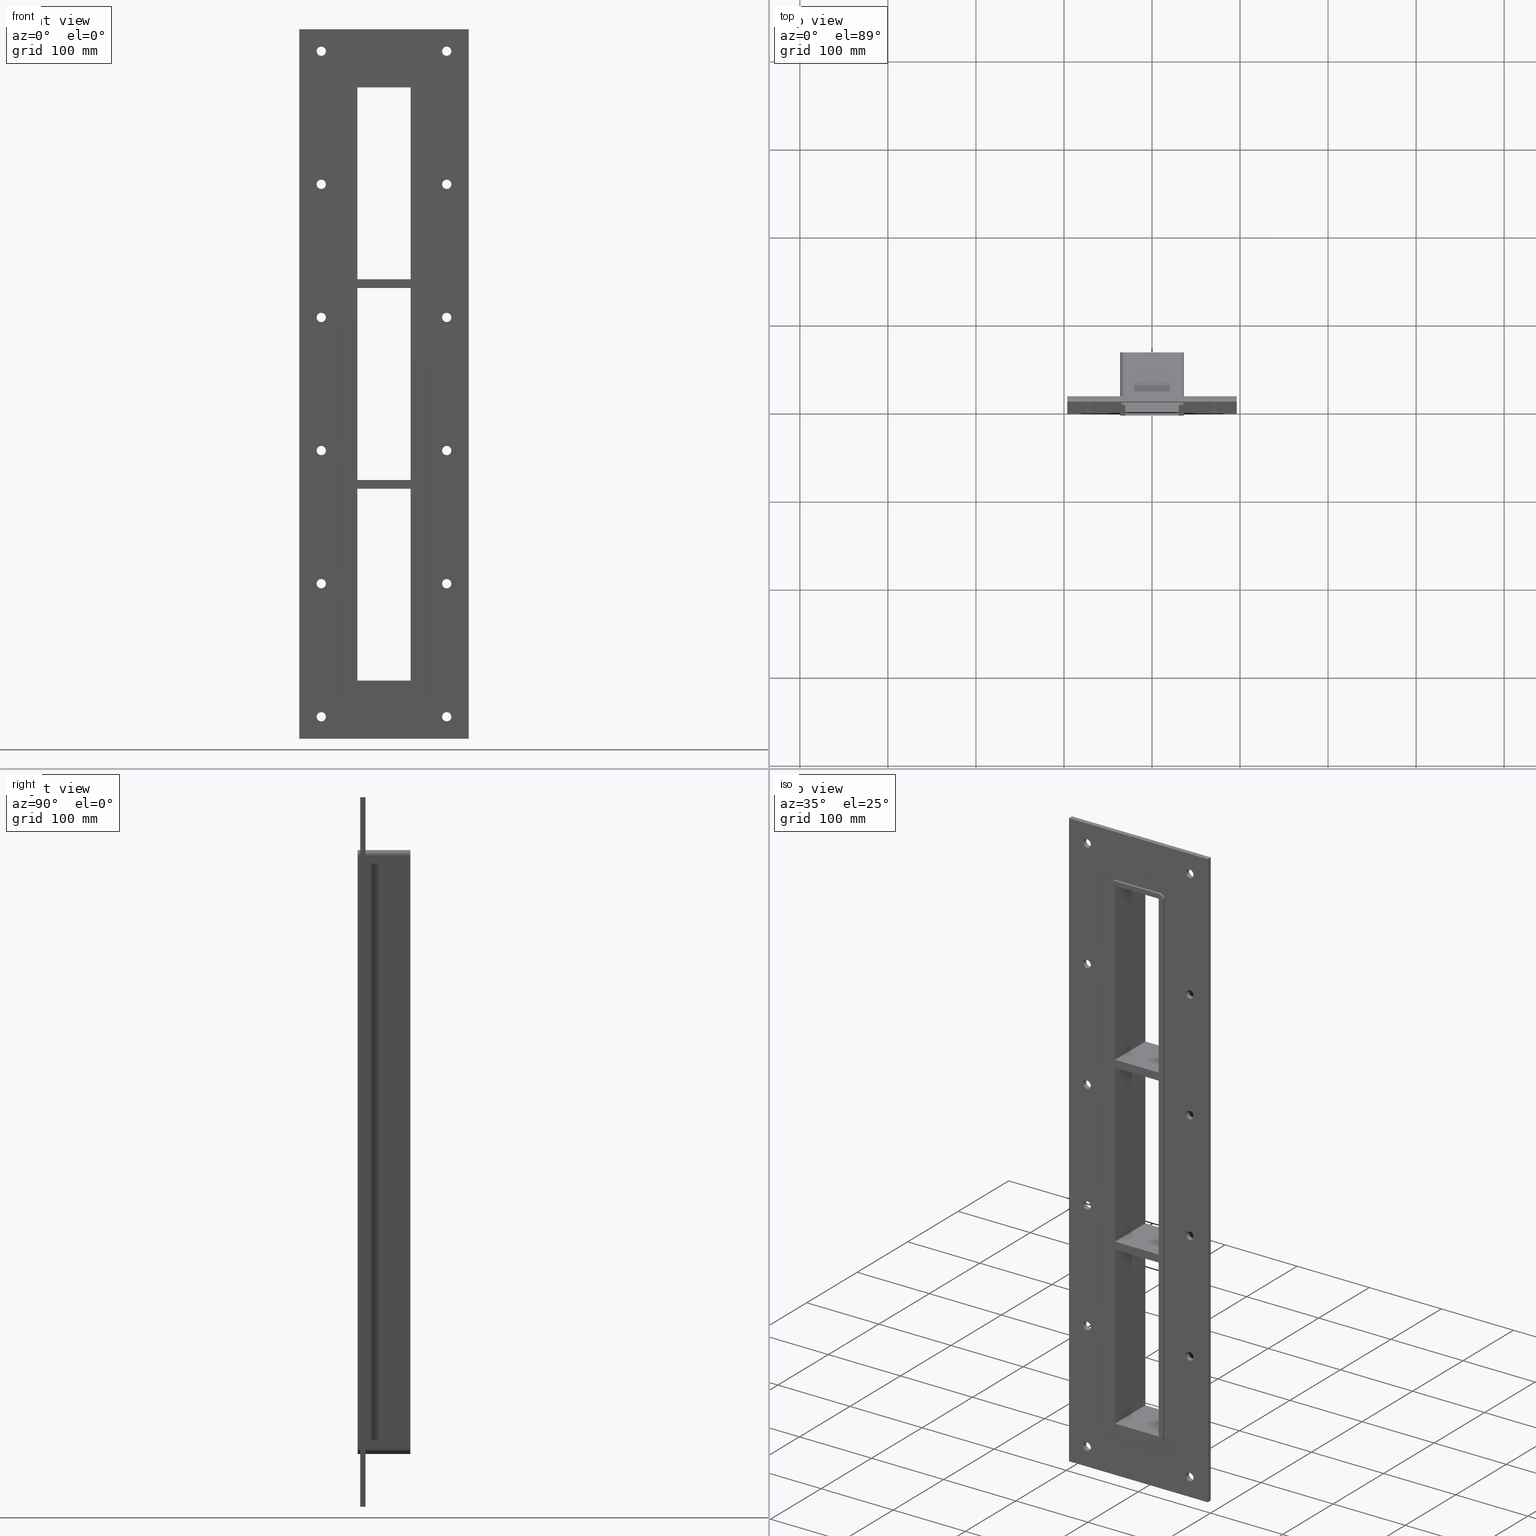
[diagram: canonical four-view strip — front | top / right | iso, engineering-drawing reading convention]
A machine part, canonical four-view strip (front | top / right | iso — engineering-drawing reading convention). The complete STEP part file that produces these views, byte-faithful:
ISO-10303-21;
HEADER;
/****************************************************************
 * Generated by software with PDElib inside                    *
 * PDElib Version v51a, created Wed 11/30/2011                  *
 * ITI Transcendata (http://www.transcendata.com/)              *
 ****************************************************************/
FILE_DESCRIPTION((''),'2;1');
FILE_NAME('L:\\roxtec-se\\Projects\\Ongoing_Projects\\12403 Transit Designer\\Product-data\\Product Data\\Reviwed & Approved\\Review\\GH\\STEP\\GH5+5+5X1.stp','2015-02-20T11:29:31',('se-emikul'),(''),'Autodesk Inventor 2013','Autodesk Inventor 2013','');
FILE_SCHEMA(('AUTOMOTIVE_DESIGN { 1 0 10303 214 1 1 1 1 }'));
ENDSEC;
DATA;
#5=APPLICATION_CONTEXT('automotive design');
#6=APPLICATION_PROTOCOL_DEFINITION('International Standard','automotive_design',2001,#5);
#7=PRODUCT_CONTEXT('',#5,'mechanical');
#8=PRODUCT('GH5+5+5X1','GH5+5+5X1',$,(#7));
#9=PRODUCT_RELATED_PRODUCT_CATEGORY('part',$,(#8));
#10=PRODUCT_DEFINITION_FORMATION('',$,#8);
#11=PRODUCT_DEFINITION_CONTEXT('part definition',#5,'design');
#12=PRODUCT_DEFINITION('',$,#10,#11);
#18=(NAMED_UNIT(*)PLANE_ANGLE_UNIT()SI_UNIT($,.RADIAN.));
#19=DIMENSIONAL_EXPONENTS(0.0,0.0,0.0,0.0,0.0,0.0,0.0);
#20=PLANE_ANGLE_MEASURE_WITH_UNIT(PLANE_ANGLE_MEASURE(0.0174532925),#18);
#24=(CONVERSION_BASED_UNIT('DEGREE',#20)NAMED_UNIT(#19)PLANE_ANGLE_UNIT());
#28=(NAMED_UNIT(*)SI_UNIT($,.STERADIAN.)SOLID_ANGLE_UNIT());
#32=(LENGTH_UNIT()NAMED_UNIT(*)SI_UNIT(.MILLI.,.METRE.));
#34=UNCERTAINTY_MEASURE_WITH_UNIT(LENGTH_MEASURE(0.01),#32,'DISTANCE_ACCURACY_VALUE','');
#36=(GEOMETRIC_REPRESENTATION_CONTEXT(3)GLOBAL_UNCERTAINTY_ASSIGNED_CONTEXT((#34))GLOBAL_UNIT_ASSIGNED_CONTEXT((#24,#28,#32))REPRESENTATION_CONTEXT('None','None'));
#37=AXIS2_PLACEMENT_3D('',#38,#39,#40);
#38=CARTESIAN_POINT('',(0.0,0.0,0.0));
#39=DIRECTION('',(0.0,0.0,1.0));
#40=DIRECTION('',(1.0,0.0,0.0));
#41=SHAPE_REPRESENTATION('',(#37),#36);
#42=PRODUCT_DEFINITION_SHAPE('','',#12);
#43=SHAPE_DEFINITION_REPRESENTATION(#42,#41);
#49=(NAMED_UNIT(*)PLANE_ANGLE_UNIT()SI_UNIT($,.RADIAN.));
#50=DIMENSIONAL_EXPONENTS(0.0,0.0,0.0,0.0,0.0,0.0,0.0);
#51=PLANE_ANGLE_MEASURE_WITH_UNIT(PLANE_ANGLE_MEASURE(0.0174532925),#49);
#55=(CONVERSION_BASED_UNIT('DEGREE',#51)NAMED_UNIT(#50)PLANE_ANGLE_UNIT());
#59=(NAMED_UNIT(*)SI_UNIT($,.STERADIAN.)SOLID_ANGLE_UNIT());
#63=(LENGTH_UNIT()NAMED_UNIT(*)SI_UNIT(.MILLI.,.METRE.));
#65=UNCERTAINTY_MEASURE_WITH_UNIT(LENGTH_MEASURE(0.000001),#63,'DISTANCE_ACCURACY_VALUE','');
#67=(GEOMETRIC_REPRESENTATION_CONTEXT(3)GLOBAL_UNCERTAINTY_ASSIGNED_CONTEXT((#65))GLOBAL_UNIT_ASSIGNED_CONTEXT((#55,#59,#63))REPRESENTATION_CONTEXT('','3D'));
#68=CARTESIAN_POINT('',(-71.250000000000085,830.83828149646547,-378.00000000000006));
#69=DIRECTION('',(0.0,-1.0,0.0));
#70=DIRECTION('',(1.0,0.0,0.0));
#71=AXIS2_PLACEMENT_3D('',#68,#69,#70);
#72=CYLINDRICAL_SURFACE('',#71,5.25);
#73=CARTESIAN_POINT('',(-76.500000000000085,5.999999999999943,-378.00000000000006));
#74=VERTEX_POINT('',#73);
#75=CARTESIAN_POINT('',(-71.250000000000085,5.999999999999943,-378.00000000000006));
#76=DIRECTION('',(0.0,-1.0,0.0));
#77=DIRECTION('',(1.0,0.0,0.0));
#78=AXIS2_PLACEMENT_3D('',#75,#76,#77);
#79=CIRCLE('',#78,5.25);
#80=EDGE_CURVE('',#74,#74,#79,.T.);
#81=ORIENTED_EDGE('',*,*,#80,.F.);
#82=EDGE_LOOP('',(#81));
#83=FACE_OUTER_BOUND('',#82,.T.);
#84=CARTESIAN_POINT('',(-66.000000000000085,0.0,-378.00000000000006));
#85=VERTEX_POINT('',#84);
#86=CARTESIAN_POINT('',(-71.250000000000085,0.0,-378.00000000000006));
#87=DIRECTION('',(0.0,1.0,0.0));
#88=DIRECTION('',(1.0,0.0,0.0));
#89=AXIS2_PLACEMENT_3D('',#86,#87,#88);
#90=CIRCLE('',#89,5.25);
#91=EDGE_CURVE('',#85,#85,#90,.T.);
#92=ORIENTED_EDGE('',*,*,#91,.F.);
#93=EDGE_LOOP('',(#92));
#94=FACE_BOUND('',#93,.T.);
#95=ADVANCED_FACE('',(#83,#94),#72,.F.);
#96=CARTESIAN_POINT('',(71.249999999999915,830.83828149646547,-226.80000000000007));
#97=DIRECTION('',(0.0,-1.0,0.0));
#98=DIRECTION('',(1.0,0.0,0.0));
#99=AXIS2_PLACEMENT_3D('',#96,#97,#98);
#100=CYLINDRICAL_SURFACE('',#99,5.25);
#101=CARTESIAN_POINT('',(65.999999999999915,5.999999999999943,-226.80000000000007));
#102=VERTEX_POINT('',#101);
#103=CARTESIAN_POINT('',(71.249999999999915,5.999999999999943,-226.80000000000007));
#104=DIRECTION('',(0.0,-1.0,0.0));
#105=DIRECTION('',(1.0,0.0,0.0));
#106=AXIS2_PLACEMENT_3D('',#103,#104,#105);
#107=CIRCLE('',#106,5.25);
#108=EDGE_CURVE('',#102,#102,#107,.T.);
#109=ORIENTED_EDGE('',*,*,#108,.F.);
#110=EDGE_LOOP('',(#109));
#111=FACE_OUTER_BOUND('',#110,.T.);
#112=CARTESIAN_POINT('',(76.499999999999915,0.0,-226.80000000000007));
#113=VERTEX_POINT('',#112);
#114=CARTESIAN_POINT('',(71.249999999999915,0.0,-226.80000000000007));
#115=DIRECTION('',(0.0,1.0,0.0));
#116=DIRECTION('',(1.0,0.0,0.0));
#117=AXIS2_PLACEMENT_3D('',#114,#115,#116);
#118=CIRCLE('',#117,5.25);
#119=EDGE_CURVE('',#113,#113,#118,.T.);
#120=ORIENTED_EDGE('',*,*,#119,.F.);
#121=EDGE_LOOP('',(#120));
#122=FACE_BOUND('',#121,.T.);
#123=ADVANCED_FACE('',(#111,#122),#100,.F.);
#124=CARTESIAN_POINT('',(-71.250000000000085,830.83828149646547,-226.80000000000007));
#125=DIRECTION('',(0.0,-1.0,0.0));
#126=DIRECTION('',(1.0,0.0,0.0));
#127=AXIS2_PLACEMENT_3D('',#124,#125,#126);
#128=CYLINDRICAL_SURFACE('',#127,5.25);
#129=CARTESIAN_POINT('',(-76.500000000000085,5.999999999999943,-226.80000000000007));
#130=VERTEX_POINT('',#129);
#131=CARTESIAN_POINT('',(-71.250000000000085,5.999999999999943,-226.80000000000007));
#132=DIRECTION('',(0.0,-1.0,0.0));
#133=DIRECTION('',(1.0,0.0,0.0));
#134=AXIS2_PLACEMENT_3D('',#131,#132,#133);
#135=CIRCLE('',#134,5.25);
#136=EDGE_CURVE('',#130,#130,#135,.T.);
#137=ORIENTED_EDGE('',*,*,#136,.F.);
#138=EDGE_LOOP('',(#137));
#139=FACE_OUTER_BOUND('',#138,.T.);
#140=CARTESIAN_POINT('',(-66.000000000000085,0.0,-226.80000000000007));
#141=VERTEX_POINT('',#140);
#142=CARTESIAN_POINT('',(-71.250000000000085,0.0,-226.80000000000007));
#143=DIRECTION('',(0.0,1.0,0.0));
#144=DIRECTION('',(1.0,0.0,0.0));
#145=AXIS2_PLACEMENT_3D('',#142,#143,#144);
#146=CIRCLE('',#145,5.25);
#147=EDGE_CURVE('',#141,#141,#146,.T.);
#148=ORIENTED_EDGE('',*,*,#147,.F.);
#149=EDGE_LOOP('',(#148));
#150=FACE_BOUND('',#149,.T.);
#151=ADVANCED_FACE('',(#139,#150),#128,.F.);
#152=CARTESIAN_POINT('',(71.249999999999915,830.83828149646547,-75.600000000000108));
#153=DIRECTION('',(0.0,-1.0,0.0));
#154=DIRECTION('',(1.0,0.0,0.0));
#155=AXIS2_PLACEMENT_3D('',#152,#153,#154);
#156=CYLINDRICAL_SURFACE('',#155,5.25);
#157=CARTESIAN_POINT('',(65.999999999999915,5.999999999999943,-75.600000000000108));
#158=VERTEX_POINT('',#157);
#159=CARTESIAN_POINT('',(71.249999999999915,5.999999999999943,-75.600000000000108));
#160=DIRECTION('',(0.0,-1.0,0.0));
#161=DIRECTION('',(1.0,0.0,0.0));
#162=AXIS2_PLACEMENT_3D('',#159,#160,#161);
#163=CIRCLE('',#162,5.25);
#164=EDGE_CURVE('',#158,#158,#163,.T.);
#165=ORIENTED_EDGE('',*,*,#164,.F.);
#166=EDGE_LOOP('',(#165));
#167=FACE_OUTER_BOUND('',#166,.T.);
#168=CARTESIAN_POINT('',(76.499999999999915,0.0,-75.600000000000108));
#169=VERTEX_POINT('',#168);
#170=CARTESIAN_POINT('',(71.249999999999915,0.0,-75.600000000000108));
#171=DIRECTION('',(0.0,1.0,0.0));
#172=DIRECTION('',(1.0,0.0,0.0));
#173=AXIS2_PLACEMENT_3D('',#170,#171,#172);
#174=CIRCLE('',#173,5.25);
#175=EDGE_CURVE('',#169,#169,#174,.T.);
#176=ORIENTED_EDGE('',*,*,#175,.F.);
#177=EDGE_LOOP('',(#176));
#178=FACE_BOUND('',#177,.T.);
#179=ADVANCED_FACE('',(#167,#178),#156,.F.);
#180=CARTESIAN_POINT('',(-71.250000000000085,830.83828149646547,-75.600000000000108));
#181=DIRECTION('',(0.0,-1.0,0.0));
#182=DIRECTION('',(1.0,0.0,0.0));
#183=AXIS2_PLACEMENT_3D('',#180,#181,#182);
#184=CYLINDRICAL_SURFACE('',#183,5.25);
#185=CARTESIAN_POINT('',(-76.500000000000085,5.999999999999943,-75.600000000000108));
#186=VERTEX_POINT('',#185);
#187=CARTESIAN_POINT('',(-71.250000000000085,5.999999999999943,-75.600000000000108));
#188=DIRECTION('',(0.0,-1.0,0.0));
#189=DIRECTION('',(1.0,0.0,0.0));
#190=AXIS2_PLACEMENT_3D('',#187,#188,#189);
#191=CIRCLE('',#190,5.25);
#192=EDGE_CURVE('',#186,#186,#191,.T.);
#193=ORIENTED_EDGE('',*,*,#192,.F.);
#194=EDGE_LOOP('',(#193));
#195=FACE_OUTER_BOUND('',#194,.T.);
#196=CARTESIAN_POINT('',(-66.000000000000085,0.0,-75.600000000000108));
#197=VERTEX_POINT('',#196);
#198=CARTESIAN_POINT('',(-71.250000000000085,0.0,-75.600000000000108));
#199=DIRECTION('',(0.0,1.0,0.0));
#200=DIRECTION('',(1.0,0.0,0.0));
#201=AXIS2_PLACEMENT_3D('',#198,#199,#200);
#202=CIRCLE('',#201,5.25);
#203=EDGE_CURVE('',#197,#197,#202,.T.);
#204=ORIENTED_EDGE('',*,*,#203,.F.);
#205=EDGE_LOOP('',(#204));
#206=FACE_BOUND('',#205,.T.);
#207=ADVANCED_FACE('',(#195,#206),#184,.F.);
#208=CARTESIAN_POINT('',(71.249999999999915,830.83828149646547,75.599999999999937));
#209=DIRECTION('',(0.0,-1.0,0.0));
#210=DIRECTION('',(1.0,0.0,0.0));
#211=AXIS2_PLACEMENT_3D('',#208,#209,#210);
#212=CYLINDRICAL_SURFACE('',#211,5.25);
#213=CARTESIAN_POINT('',(65.999999999999915,5.999999999999943,75.599999999999937));
#214=VERTEX_POINT('',#213);
#215=CARTESIAN_POINT('',(71.249999999999915,5.999999999999943,75.599999999999937));
#216=DIRECTION('',(0.0,-1.0,0.0));
#217=DIRECTION('',(1.0,0.0,0.0));
#218=AXIS2_PLACEMENT_3D('',#215,#216,#217);
#219=CIRCLE('',#218,5.25);
#220=EDGE_CURVE('',#214,#214,#219,.T.);
#221=ORIENTED_EDGE('',*,*,#220,.F.);
#222=EDGE_LOOP('',(#221));
#223=FACE_OUTER_BOUND('',#222,.T.);
#224=CARTESIAN_POINT('',(76.499999999999915,0.0,75.599999999999937));
#225=VERTEX_POINT('',#224);
#226=CARTESIAN_POINT('',(71.249999999999915,0.0,75.599999999999937));
#227=DIRECTION('',(0.0,1.0,0.0));
#228=DIRECTION('',(1.0,0.0,0.0));
#229=AXIS2_PLACEMENT_3D('',#226,#227,#228);
#230=CIRCLE('',#229,5.25);
#231=EDGE_CURVE('',#225,#225,#230,.T.);
#232=ORIENTED_EDGE('',*,*,#231,.F.);
#233=EDGE_LOOP('',(#232));
#234=FACE_BOUND('',#233,.T.);
#235=ADVANCED_FACE('',(#223,#234),#212,.F.);
#236=CARTESIAN_POINT('',(-71.250000000000085,830.83828149646547,75.599999999999937));
#237=DIRECTION('',(0.0,-1.0,0.0));
#238=DIRECTION('',(1.0,0.0,0.0));
#239=AXIS2_PLACEMENT_3D('',#236,#237,#238);
#240=CYLINDRICAL_SURFACE('',#239,5.25);
#241=CARTESIAN_POINT('',(-76.500000000000085,5.999999999999943,75.599999999999937));
#242=VERTEX_POINT('',#241);
#243=CARTESIAN_POINT('',(-71.250000000000085,5.999999999999943,75.599999999999937));
#244=DIRECTION('',(0.0,-1.0,0.0));
#245=DIRECTION('',(1.0,0.0,0.0));
#246=AXIS2_PLACEMENT_3D('',#243,#244,#245);
#247=CIRCLE('',#246,5.25);
#248=EDGE_CURVE('',#242,#242,#247,.T.);
#249=ORIENTED_EDGE('',*,*,#248,.F.);
#250=EDGE_LOOP('',(#249));
#251=FACE_OUTER_BOUND('',#250,.T.);
#252=CARTESIAN_POINT('',(-66.000000000000085,0.0,75.599999999999937));
#253=VERTEX_POINT('',#252);
#254=CARTESIAN_POINT('',(-71.250000000000085,0.0,75.599999999999937));
#255=DIRECTION('',(0.0,1.0,0.0));
#256=DIRECTION('',(1.0,0.0,0.0));
#257=AXIS2_PLACEMENT_3D('',#254,#255,#256);
#258=CIRCLE('',#257,5.25);
#259=EDGE_CURVE('',#253,#253,#258,.T.);
#260=ORIENTED_EDGE('',*,*,#259,.F.);
#261=EDGE_LOOP('',(#260));
#262=FACE_BOUND('',#261,.T.);
#263=ADVANCED_FACE('',(#251,#262),#240,.F.);
#264=CARTESIAN_POINT('',(71.249999999999915,830.83828149646547,226.79999999999993));
#265=DIRECTION('',(0.0,-1.0,0.0));
#266=DIRECTION('',(1.0,0.0,0.0));
#267=AXIS2_PLACEMENT_3D('',#264,#265,#266);
#268=CYLINDRICAL_SURFACE('',#267,5.25);
#269=CARTESIAN_POINT('',(65.999999999999915,5.999999999999943,226.79999999999993));
#270=VERTEX_POINT('',#269);
#271=CARTESIAN_POINT('',(71.249999999999915,5.999999999999943,226.79999999999993));
#272=DIRECTION('',(0.0,-1.0,0.0));
#273=DIRECTION('',(1.0,0.0,0.0));
#274=AXIS2_PLACEMENT_3D('',#271,#272,#273);
#275=CIRCLE('',#274,5.25);
#276=EDGE_CURVE('',#270,#270,#275,.T.);
#277=ORIENTED_EDGE('',*,*,#276,.F.);
#278=EDGE_LOOP('',(#277));
#279=FACE_OUTER_BOUND('',#278,.T.);
#280=CARTESIAN_POINT('',(76.499999999999915,0.0,226.79999999999993));
#281=VERTEX_POINT('',#280);
#282=CARTESIAN_POINT('',(71.249999999999915,0.0,226.79999999999993));
#283=DIRECTION('',(0.0,1.0,0.0));
#284=DIRECTION('',(1.0,0.0,0.0));
#285=AXIS2_PLACEMENT_3D('',#282,#283,#284);
#286=CIRCLE('',#285,5.25);
#287=EDGE_CURVE('',#281,#281,#286,.T.);
#288=ORIENTED_EDGE('',*,*,#287,.F.);
#289=EDGE_LOOP('',(#288));
#290=FACE_BOUND('',#289,.T.);
#291=ADVANCED_FACE('',(#279,#290),#268,.F.);
#292=CARTESIAN_POINT('',(-71.250000000000085,830.83828149646547,226.79999999999993));
#293=DIRECTION('',(0.0,-1.0,0.0));
#294=DIRECTION('',(1.0,0.0,0.0));
#295=AXIS2_PLACEMENT_3D('',#292,#293,#294);
#296=CYLINDRICAL_SURFACE('',#295,5.25);
#297=CARTESIAN_POINT('',(-76.500000000000085,5.999999999999943,226.79999999999993));
#298=VERTEX_POINT('',#297);
#299=CARTESIAN_POINT('',(-71.250000000000085,5.999999999999943,226.79999999999993));
#300=DIRECTION('',(0.0,-1.0,0.0));
#301=DIRECTION('',(1.0,0.0,0.0));
#302=AXIS2_PLACEMENT_3D('',#299,#300,#301);
#303=CIRCLE('',#302,5.25);
#304=EDGE_CURVE('',#298,#298,#303,.T.);
#305=ORIENTED_EDGE('',*,*,#304,.F.);
#306=EDGE_LOOP('',(#305));
#307=FACE_OUTER_BOUND('',#306,.T.);
#308=CARTESIAN_POINT('',(-66.000000000000085,0.0,226.79999999999993));
#309=VERTEX_POINT('',#308);
#310=CARTESIAN_POINT('',(-71.250000000000085,0.0,226.79999999999993));
#311=DIRECTION('',(0.0,1.0,0.0));
#312=DIRECTION('',(1.0,0.0,0.0));
#313=AXIS2_PLACEMENT_3D('',#310,#311,#312);
#314=CIRCLE('',#313,5.25);
#315=EDGE_CURVE('',#309,#309,#314,.T.);
#316=ORIENTED_EDGE('',*,*,#315,.F.);
#317=EDGE_LOOP('',(#316));
#318=FACE_BOUND('',#317,.T.);
#319=ADVANCED_FACE('',(#307,#318),#296,.F.);
#320=CARTESIAN_POINT('',(71.249999999999915,830.83828149646547,-378.00000000000006));
#321=DIRECTION('',(0.0,-1.0,0.0));
#322=DIRECTION('',(1.0,0.0,0.0));
#323=AXIS2_PLACEMENT_3D('',#320,#321,#322);
#324=CYLINDRICAL_SURFACE('',#323,5.25);
#325=CARTESIAN_POINT('',(65.999999999999915,5.999999999999943,-378.00000000000006));
#326=VERTEX_POINT('',#325);
#327=CARTESIAN_POINT('',(71.249999999999915,5.999999999999943,-378.00000000000006));
#328=DIRECTION('',(0.0,-1.0,0.0));
#329=DIRECTION('',(1.0,0.0,0.0));
#330=AXIS2_PLACEMENT_3D('',#327,#328,#329);
#331=CIRCLE('',#330,5.25);
#332=EDGE_CURVE('',#326,#326,#331,.T.);
#333=ORIENTED_EDGE('',*,*,#332,.F.);
#334=EDGE_LOOP('',(#333));
#335=FACE_OUTER_BOUND('',#334,.T.);
#336=CARTESIAN_POINT('',(76.499999999999915,0.0,-378.00000000000006));
#337=VERTEX_POINT('',#336);
#338=CARTESIAN_POINT('',(71.249999999999915,0.0,-378.00000000000006));
#339=DIRECTION('',(0.0,1.0,0.0));
#340=DIRECTION('',(1.0,0.0,0.0));
#341=AXIS2_PLACEMENT_3D('',#338,#339,#340);
#342=CIRCLE('',#341,5.25);
#343=EDGE_CURVE('',#337,#337,#342,.T.);
#344=ORIENTED_EDGE('',*,*,#343,.F.);
#345=EDGE_LOOP('',(#344));
#346=FACE_BOUND('',#345,.T.);
#347=ADVANCED_FACE('',(#335,#346),#324,.F.);
#348=CARTESIAN_POINT('',(-71.250000000000085,830.83828149646547,377.99999999999989));
#349=DIRECTION('',(0.0,-1.0,0.0));
#350=DIRECTION('',(1.0,0.0,0.0));
#351=AXIS2_PLACEMENT_3D('',#348,#349,#350);
#352=CYLINDRICAL_SURFACE('',#351,5.25);
#353=CARTESIAN_POINT('',(-76.500000000000085,5.999999999999943,377.99999999999989));
#354=VERTEX_POINT('',#353);
#355=CARTESIAN_POINT('',(-71.250000000000085,5.999999999999943,377.99999999999989));
#356=DIRECTION('',(0.0,-1.0,0.0));
#357=DIRECTION('',(1.0,0.0,0.0));
#358=AXIS2_PLACEMENT_3D('',#355,#356,#357);
#359=CIRCLE('',#358,5.25);
#360=EDGE_CURVE('',#354,#354,#359,.T.);
#361=ORIENTED_EDGE('',*,*,#360,.F.);
#362=EDGE_LOOP('',(#361));
#363=FACE_OUTER_BOUND('',#362,.T.);
#364=CARTESIAN_POINT('',(-66.000000000000085,0.0,377.99999999999989));
#365=VERTEX_POINT('',#364);
#366=CARTESIAN_POINT('',(-71.250000000000085,0.0,377.99999999999989));
#367=DIRECTION('',(0.0,1.0,0.0));
#368=DIRECTION('',(1.0,0.0,0.0));
#369=AXIS2_PLACEMENT_3D('',#366,#367,#368);
#370=CIRCLE('',#369,5.25);
#371=EDGE_CURVE('',#365,#365,#370,.T.);
#372=ORIENTED_EDGE('',*,*,#371,.F.);
#373=EDGE_LOOP('',(#372));
#374=FACE_BOUND('',#373,.T.);
#375=ADVANCED_FACE('',(#363,#374),#352,.F.);
#376=CARTESIAN_POINT('',(71.249999999999915,830.83828149646547,377.99999999999989));
#377=DIRECTION('',(0.0,-1.0,0.0));
#378=DIRECTION('',(1.0,0.0,0.0));
#379=AXIS2_PLACEMENT_3D('',#376,#377,#378);
#380=CYLINDRICAL_SURFACE('',#379,5.25);
#381=CARTESIAN_POINT('',(65.999999999999915,5.999999999999943,377.99999999999989));
#382=VERTEX_POINT('',#381);
#383=CARTESIAN_POINT('',(71.249999999999915,5.999999999999943,377.99999999999989));
#384=DIRECTION('',(0.0,-1.0,0.0));
#385=DIRECTION('',(1.0,0.0,0.0));
#386=AXIS2_PLACEMENT_3D('',#383,#384,#385);
#387=CIRCLE('',#386,5.25);
#388=EDGE_CURVE('',#382,#382,#387,.T.);
#389=ORIENTED_EDGE('',*,*,#388,.F.);
#390=EDGE_LOOP('',(#389));
#391=FACE_OUTER_BOUND('',#390,.T.);
#392=CARTESIAN_POINT('',(76.499999999999915,0.0,377.99999999999989));
#393=VERTEX_POINT('',#392);
#394=CARTESIAN_POINT('',(71.249999999999915,0.0,377.99999999999989));
#395=DIRECTION('',(0.0,1.0,0.0));
#396=DIRECTION('',(1.0,0.0,0.0));
#397=AXIS2_PLACEMENT_3D('',#394,#395,#396);
#398=CIRCLE('',#397,5.25);
#399=EDGE_CURVE('',#393,#393,#398,.T.);
#400=ORIENTED_EDGE('',*,*,#399,.F.);
#401=EDGE_LOOP('',(#400));
#402=FACE_BOUND('',#401,.T.);
#403=ADVANCED_FACE('',(#391,#402),#380,.F.);
#404=CARTESIAN_POINT('',(30.249999999996362,-3.0,108.99999999998919));
#405=DIRECTION('',(0.0,0.0,-1.0));
#406=DIRECTION('',(-1.0,0.0,0.0));
#407=AXIS2_PLACEMENT_3D('',#404,#405,#406);
#408=PLANE('',#407);
#409=CARTESIAN_POINT('',(30.249999999996362,-3.0,108.99999999998919));
#410=VERTEX_POINT('',#409);
#411=CARTESIAN_POINT('',(-30.249999999997076,-3.0,108.99999999998772));
#412=VERTEX_POINT('',#411);
#413=CARTESIAN_POINT('',(30.249999999996362,-3.0,108.99999999998919));
#414=DIRECTION('',(-1.0,0.0,0.0));
#415=VECTOR('',#414,60.499999999993435);
#416=LINE('',#413,#415);
#417=EDGE_CURVE('',#410,#412,#416,.T.);
#418=ORIENTED_EDGE('',*,*,#417,.T.);
#419=CARTESIAN_POINT('',(-30.249999999997076,57.0,108.99999999998772));
#420=VERTEX_POINT('',#419);
#421=CARTESIAN_POINT('',(-30.249999999999986,57.000000000000007,108.99999999998771));
#422=DIRECTION('',(0.0,-1.0,0.0));
#423=VECTOR('',#422,60.000000000000007);
#424=LINE('',#421,#423);
#425=EDGE_CURVE('',#420,#412,#424,.T.);
#426=ORIENTED_EDGE('',*,*,#425,.F.);
#427=CARTESIAN_POINT('',(30.249999999996358,57.0,108.99999999998919));
#428=VERTEX_POINT('',#427);
#429=CARTESIAN_POINT('',(30.249999999996362,57.0,108.99999999998919));
#430=DIRECTION('',(-1.0,0.0,0.0));
#431=VECTOR('',#430,60.499999999993435);
#432=LINE('',#429,#431);
#433=EDGE_CURVE('',#428,#420,#432,.T.);
#434=ORIENTED_EDGE('',*,*,#433,.F.);
#435=CARTESIAN_POINT('',(30.249999999999986,-3.0,108.99999999998919));
#436=DIRECTION('',(0.0,1.0,0.0));
#437=VECTOR('',#436,60.000000000000007);
#438=LINE('',#435,#437);
#439=EDGE_CURVE('',#410,#428,#438,.T.);
#440=ORIENTED_EDGE('',*,*,#439,.F.);
#441=EDGE_LOOP('',(#418,#426,#434,#440));
#442=FACE_OUTER_BOUND('',#441,.T.);
#443=ADVANCED_FACE('',(#442),#408,.T.);
#444=CARTESIAN_POINT('',(-30.249999999997076,-3.0,118.99999999999909));
#445=DIRECTION('',(0.0,0.0,1.0));
#446=DIRECTION('',(1.0,0.0,0.0));
#447=AXIS2_PLACEMENT_3D('',#444,#445,#446);
#448=PLANE('',#447);
#449=CARTESIAN_POINT('',(-30.249999999997076,-3.0,118.99999999999909));
#450=VERTEX_POINT('',#449);
#451=CARTESIAN_POINT('',(30.24999999999903,-3.0,118.99999999999909));
#452=VERTEX_POINT('',#451);
#453=CARTESIAN_POINT('',(-30.249999999997076,-3.0,118.99999999999909));
#454=DIRECTION('',(1.0,0.0,0.0));
#455=VECTOR('',#454,60.499999999996106);
#456=LINE('',#453,#455);
#457=EDGE_CURVE('',#450,#452,#456,.T.);
#458=ORIENTED_EDGE('',*,*,#457,.T.);
#459=CARTESIAN_POINT('',(30.24999999999903,57.0,118.99999999999909));
#460=VERTEX_POINT('',#459);
#461=CARTESIAN_POINT('',(30.249999999999986,57.000000000000007,118.99999999999908));
#462=DIRECTION('',(0.0,-1.0,0.0));
#463=VECTOR('',#462,60.000000000000007);
#464=LINE('',#461,#463);
#465=EDGE_CURVE('',#460,#452,#464,.T.);
#466=ORIENTED_EDGE('',*,*,#465,.F.);
#467=CARTESIAN_POINT('',(-30.249999999997076,57.0,118.99999999999909));
#468=VERTEX_POINT('',#467);
#469=CARTESIAN_POINT('',(-30.249999999997076,57.0,118.99999999999909));
#470=DIRECTION('',(1.0,0.0,0.0));
#471=VECTOR('',#470,60.499999999996106);
#472=LINE('',#469,#471);
#473=EDGE_CURVE('',#468,#460,#472,.T.);
#474=ORIENTED_EDGE('',*,*,#473,.F.);
#475=CARTESIAN_POINT('',(-30.249999999999986,-3.0,118.99999999999908));
#476=DIRECTION('',(0.0,1.0,0.0));
#477=VECTOR('',#476,60.000000000000007);
#478=LINE('',#475,#477);
#479=EDGE_CURVE('',#450,#468,#478,.T.);
#480=ORIENTED_EDGE('',*,*,#479,.F.);
#481=EDGE_LOOP('',(#458,#466,#474,#480));
#482=FACE_OUTER_BOUND('',#481,.T.);
#483=ADVANCED_FACE('',(#482),#448,.T.);
#484=CARTESIAN_POINT('',(-30.249999999999986,0.0,-337.0));
#485=DIRECTION('',(-1.0,0.0,0.0));
#486=DIRECTION('',(0.0,0.0,1.0));
#487=AXIS2_PLACEMENT_3D('',#484,#485,#486);
#488=PLANE('',#487);
#489=ORIENTED_EDGE('',*,*,#479,.T.);
#490=CARTESIAN_POINT('',(-30.249999999999986,57.0,337.0));
#491=VERTEX_POINT('',#490);
#492=CARTESIAN_POINT('',(-30.249999999999986,57.0,337.00000000000006));
#493=DIRECTION('',(0.0,0.0,-1.0));
#494=VECTOR('',#493,218.00000000000097);
#495=LINE('',#492,#494);
#496=EDGE_CURVE('',#491,#468,#495,.T.);
#497=ORIENTED_EDGE('',*,*,#496,.F.);
#498=CARTESIAN_POINT('',(-30.249999999999986,-3.0,337.0));
#499=VERTEX_POINT('',#498);
#500=CARTESIAN_POINT('',(-30.249999999999986,-3.0,337.0));
#501=DIRECTION('',(0.0,1.0,0.0));
#502=VECTOR('',#501,60.0);
#503=LINE('',#500,#502);
#504=EDGE_CURVE('',#499,#491,#503,.T.);
#505=ORIENTED_EDGE('',*,*,#504,.F.);
#506=CARTESIAN_POINT('',(-30.249999999999986,-3.0,118.99999999999909));
#507=DIRECTION('',(0.0,0.0,1.0));
#508=VECTOR('',#507,218.00000000000097);
#509=LINE('',#506,#508);
#510=EDGE_CURVE('',#450,#499,#509,.T.);
#511=ORIENTED_EDGE('',*,*,#510,.F.);
#512=EDGE_LOOP('',(#489,#497,#505,#511));
#513=FACE_OUTER_BOUND('',#512,.T.);
#514=ADVANCED_FACE('',(#513),#488,.F.);
#515=CARTESIAN_POINT('',(30.249999999999986,0.0,337.0));
#516=DIRECTION('',(1.0,0.0,0.0));
#517=DIRECTION('',(0.0,0.0,-1.0));
#518=AXIS2_PLACEMENT_3D('',#515,#516,#517);
#519=PLANE('',#518);
#520=ORIENTED_EDGE('',*,*,#439,.T.);
#521=CARTESIAN_POINT('',(30.24999999999903,57.0,-109.00000000000091));
#522=VERTEX_POINT('',#521);
#523=CARTESIAN_POINT('',(30.249999999999986,57.0,-109.00000000000091));
#524=DIRECTION('',(0.0,0.0,1.0));
#525=VECTOR('',#524,217.99999999999008);
#526=LINE('',#523,#525);
#527=EDGE_CURVE('',#522,#428,#526,.T.);
#528=ORIENTED_EDGE('',*,*,#527,.F.);
#529=CARTESIAN_POINT('',(30.24999999999903,-3.0,-109.00000000000091));
#530=VERTEX_POINT('',#529);
#531=CARTESIAN_POINT('',(30.249999999999986,57.000000000000007,-109.00000000000091));
#532=DIRECTION('',(0.0,-1.0,0.0));
#533=VECTOR('',#532,60.000000000000007);
#534=LINE('',#531,#533);
#535=EDGE_CURVE('',#522,#530,#534,.T.);
#536=ORIENTED_EDGE('',*,*,#535,.T.);
#537=CARTESIAN_POINT('',(30.249999999999986,-3.0,108.99999999998917));
#538=DIRECTION('',(0.0,0.0,-1.0));
#539=VECTOR('',#538,217.99999999999008);
#540=LINE('',#537,#539);
#541=EDGE_CURVE('',#410,#530,#540,.T.);
#542=ORIENTED_EDGE('',*,*,#541,.F.);
#543=EDGE_LOOP('',(#520,#528,#536,#542));
#544=FACE_OUTER_BOUND('',#543,.T.);
#545=ADVANCED_FACE('',(#544),#519,.F.);
#546=CARTESIAN_POINT('',(30.249999999999986,0.0,337.0));
#547=DIRECTION('',(1.0,0.0,0.0));
#548=DIRECTION('',(0.0,0.0,-1.0));
#549=AXIS2_PLACEMENT_3D('',#546,#547,#548);
#550=PLANE('',#549);
#551=ORIENTED_EDGE('',*,*,#465,.T.);
#552=CARTESIAN_POINT('',(30.249999999999986,-3.0,337.0));
#553=VERTEX_POINT('',#552);
#554=CARTESIAN_POINT('',(30.249999999999986,-3.0,337.0));
#555=DIRECTION('',(0.0,0.0,-1.0));
#556=VECTOR('',#555,218.00000000000091);
#557=LINE('',#554,#556);
#558=EDGE_CURVE('',#553,#452,#557,.T.);
#559=ORIENTED_EDGE('',*,*,#558,.F.);
#560=CARTESIAN_POINT('',(30.249999999999986,57.0,337.0));
#561=VERTEX_POINT('',#560);
#562=CARTESIAN_POINT('',(30.249999999999986,-3.0,337.0));
#563=DIRECTION('',(0.0,1.0,0.0));
#564=VECTOR('',#563,60.0);
#565=LINE('',#562,#564);
#566=EDGE_CURVE('',#553,#561,#565,.T.);
#567=ORIENTED_EDGE('',*,*,#566,.T.);
#568=CARTESIAN_POINT('',(30.249999999999986,57.0,118.99999999999909));
#569=DIRECTION('',(0.0,0.0,1.0));
#570=VECTOR('',#569,218.00000000000091);
#571=LINE('',#568,#570);
#572=EDGE_CURVE('',#460,#561,#571,.T.);
#573=ORIENTED_EDGE('',*,*,#572,.F.);
#574=EDGE_LOOP('',(#551,#559,#567,#573));
#575=FACE_OUTER_BOUND('',#574,.T.);
#576=ADVANCED_FACE('',(#575),#550,.F.);
#577=CARTESIAN_POINT('',(30.249999999996362,-3.0,-119.00000000001083));
#578=DIRECTION('',(0.0,0.0,-1.0));
#579=DIRECTION('',(-1.0,0.0,0.0));
#580=AXIS2_PLACEMENT_3D('',#577,#578,#579);
#581=PLANE('',#580);
#582=CARTESIAN_POINT('',(30.249999999996362,-3.0,-119.00000000001083));
#583=VERTEX_POINT('',#582);
#584=CARTESIAN_POINT('',(-30.249999999997076,-3.0,-119.00000000001228));
#585=VERTEX_POINT('',#584);
#586=CARTESIAN_POINT('',(30.249999999996362,-3.0,-119.00000000001083));
#587=DIRECTION('',(-1.0,0.0,0.0));
#588=VECTOR('',#587,60.499999999993435);
#589=LINE('',#586,#588);
#590=EDGE_CURVE('',#583,#585,#589,.T.);
#591=ORIENTED_EDGE('',*,*,#590,.T.);
#592=CARTESIAN_POINT('',(-30.249999999997076,57.0,-119.00000000001228));
#593=VERTEX_POINT('',#592);
#594=CARTESIAN_POINT('',(-30.249999999999986,57.000000000000007,-119.00000000001229));
#595=DIRECTION('',(0.0,-1.0,0.0));
#596=VECTOR('',#595,60.000000000000007);
#597=LINE('',#594,#596);
#598=EDGE_CURVE('',#593,#585,#597,.T.);
#599=ORIENTED_EDGE('',*,*,#598,.F.);
#600=CARTESIAN_POINT('',(30.249999999996358,57.0,-119.00000000001083));
#601=VERTEX_POINT('',#600);
#602=CARTESIAN_POINT('',(30.249999999996362,57.0,-119.00000000001083));
#603=DIRECTION('',(-1.0,0.0,0.0));
#604=VECTOR('',#603,60.499999999993435);
#605=LINE('',#602,#604);
#606=EDGE_CURVE('',#601,#593,#605,.T.);
#607=ORIENTED_EDGE('',*,*,#606,.F.);
#608=CARTESIAN_POINT('',(30.249999999999986,-3.0,-119.00000000001084));
#609=DIRECTION('',(0.0,1.0,0.0));
#610=VECTOR('',#609,60.000000000000007);
#611=LINE('',#608,#610);
#612=EDGE_CURVE('',#583,#601,#611,.T.);
#613=ORIENTED_EDGE('',*,*,#612,.F.);
#614=EDGE_LOOP('',(#591,#599,#607,#613));
#615=FACE_OUTER_BOUND('',#614,.T.);
#616=ADVANCED_FACE('',(#615),#581,.T.);
#617=CARTESIAN_POINT('',(-30.249999999997076,-3.0,-109.00000000000091));
#618=DIRECTION('',(0.0,0.0,1.0));
#619=DIRECTION('',(1.0,0.0,0.0));
#620=AXIS2_PLACEMENT_3D('',#617,#618,#619);
#621=PLANE('',#620);
#622=CARTESIAN_POINT('',(-30.249999999997076,-3.0,-109.00000000000091));
#623=VERTEX_POINT('',#622);
#624=CARTESIAN_POINT('',(-30.249999999997076,-3.0,-109.00000000000091));
#625=DIRECTION('',(1.0,0.0,0.0));
#626=VECTOR('',#625,60.499999999996106);
#627=LINE('',#624,#626);
#628=EDGE_CURVE('',#623,#530,#627,.T.);
#629=ORIENTED_EDGE('',*,*,#628,.T.);
#630=ORIENTED_EDGE('',*,*,#535,.F.);
#631=CARTESIAN_POINT('',(-30.249999999997076,57.0,-109.00000000000091));
#632=VERTEX_POINT('',#631);
#633=CARTESIAN_POINT('',(-30.249999999997076,57.0,-109.00000000000091));
#634=DIRECTION('',(1.0,0.0,0.0));
#635=VECTOR('',#634,60.499999999996106);
#636=LINE('',#633,#635);
#637=EDGE_CURVE('',#632,#522,#636,.T.);
#638=ORIENTED_EDGE('',*,*,#637,.F.);
#639=CARTESIAN_POINT('',(-30.249999999999986,-3.0,-109.00000000000091));
#640=DIRECTION('',(0.0,1.0,0.0));
#641=VECTOR('',#640,60.000000000000007);
#642=LINE('',#639,#641);
#643=EDGE_CURVE('',#623,#632,#642,.T.);
#644=ORIENTED_EDGE('',*,*,#643,.F.);
#645=EDGE_LOOP('',(#629,#630,#638,#644));
#646=FACE_OUTER_BOUND('',#645,.T.);
#647=ADVANCED_FACE('',(#646),#621,.T.);
#648=CARTESIAN_POINT('',(-30.249999999999986,0.0,-337.0));
#649=DIRECTION('',(-1.0,0.0,0.0));
#650=DIRECTION('',(0.0,0.0,1.0));
#651=AXIS2_PLACEMENT_3D('',#648,#649,#650);
#652=PLANE('',#651);
#653=ORIENTED_EDGE('',*,*,#425,.T.);
#654=CARTESIAN_POINT('',(-30.249999999999986,-3.0,-109.0000000000009));
#655=DIRECTION('',(0.0,0.0,1.0));
#656=VECTOR('',#655,217.99999999998863);
#657=LINE('',#654,#656);
#658=EDGE_CURVE('',#623,#412,#657,.T.);
#659=ORIENTED_EDGE('',*,*,#658,.F.);
#660=ORIENTED_EDGE('',*,*,#643,.T.);
#661=CARTESIAN_POINT('',(-30.249999999999986,57.0,108.99999999998772));
#662=DIRECTION('',(0.0,0.0,-1.0));
#663=VECTOR('',#662,217.99999999998863);
#664=LINE('',#661,#663);
#665=EDGE_CURVE('',#420,#632,#664,.T.);
#666=ORIENTED_EDGE('',*,*,#665,.F.);
#667=EDGE_LOOP('',(#653,#659,#660,#666));
#668=FACE_OUTER_BOUND('',#667,.T.);
#669=ADVANCED_FACE('',(#668),#652,.F.);
#670=CARTESIAN_POINT('',(30.249999999999986,0.0,337.0));
#671=DIRECTION('',(1.0,0.0,0.0));
#672=DIRECTION('',(0.0,0.0,-1.0));
#673=AXIS2_PLACEMENT_3D('',#670,#671,#672);
#674=PLANE('',#673);
#675=ORIENTED_EDGE('',*,*,#612,.T.);
#676=CARTESIAN_POINT('',(30.249999999999986,57.0,-337.0));
#677=VERTEX_POINT('',#676);
#678=CARTESIAN_POINT('',(30.249999999999986,57.0,-337.00000000000006));
#679=DIRECTION('',(0.0,0.0,1.0));
#680=VECTOR('',#679,217.9999999999892);
#681=LINE('',#678,#680);
#682=EDGE_CURVE('',#677,#601,#681,.T.);
#683=ORIENTED_EDGE('',*,*,#682,.F.);
#684=CARTESIAN_POINT('',(30.249999999999986,-3.0,-337.0));
#685=VERTEX_POINT('',#684);
#686=CARTESIAN_POINT('',(30.249999999999986,56.999999999999993,-337.0));
#687=DIRECTION('',(0.0,-1.0,0.0));
#688=VECTOR('',#687,59.999999999999993);
#689=LINE('',#686,#688);
#690=EDGE_CURVE('',#677,#685,#689,.T.);
#691=ORIENTED_EDGE('',*,*,#690,.T.);
#692=CARTESIAN_POINT('',(30.249999999999986,-3.0,-119.00000000001086));
#693=DIRECTION('',(0.0,0.0,-1.0));
#694=VECTOR('',#693,217.9999999999892);
#695=LINE('',#692,#694);
#696=EDGE_CURVE('',#583,#685,#695,.T.);
#697=ORIENTED_EDGE('',*,*,#696,.F.);
#698=EDGE_LOOP('',(#675,#683,#691,#697));
#699=FACE_OUTER_BOUND('',#698,.T.);
#700=ADVANCED_FACE('',(#699),#674,.F.);
#701=CARTESIAN_POINT('',(0.0,6.000000000000001,0.0));
#702=DIRECTION('',(0.0,1.0,0.0));
#703=DIRECTION('',(0.0,0.0,1.0));
#704=AXIS2_PLACEMENT_3D('',#701,#702,#703);
#705=PLANE('',#704);
#706=CARTESIAN_POINT('',(-96.249999999999986,6.000000000000001,403.00000000000006));
#707=VERTEX_POINT('',#706);
#708=CARTESIAN_POINT('',(96.249999999999986,6.000000000000001,403.00000000000006));
#709=VERTEX_POINT('',#708);
#710=CARTESIAN_POINT('',(-96.249999999999986,6.000000000000001,403.00000000000006));
#711=DIRECTION('',(1.0,0.0,0.0));
#712=VECTOR('',#711,192.49999999999997);
#713=LINE('',#710,#712);
#714=EDGE_CURVE('',#707,#709,#713,.T.);
#715=ORIENTED_EDGE('',*,*,#714,.T.);
#716=CARTESIAN_POINT('',(96.249999999999986,6.000000000000001,-403.00000000000006));
#717=VERTEX_POINT('',#716);
#718=CARTESIAN_POINT('',(96.249999999999986,6.000000000000001,403.00000000000006));
#719=DIRECTION('',(0.0,0.0,-1.0));
#720=VECTOR('',#719,806.00000000000011);
#721=LINE('',#718,#720);
#722=EDGE_CURVE('',#709,#717,#721,.T.);
#723=ORIENTED_EDGE('',*,*,#722,.T.);
#724=CARTESIAN_POINT('',(-96.249999999999986,6.000000000000001,-403.00000000000006));
#725=VERTEX_POINT('',#724);
#726=CARTESIAN_POINT('',(96.249999999999986,6.000000000000001,-403.00000000000006));
#727=DIRECTION('',(-1.0,0.0,0.0));
#728=VECTOR('',#727,192.49999999999997);
#729=LINE('',#726,#728);
#730=EDGE_CURVE('',#717,#725,#729,.T.);
#731=ORIENTED_EDGE('',*,*,#730,.T.);
#732=CARTESIAN_POINT('',(-96.249999999999986,6.000000000000001,-403.00000000000006));
#733=DIRECTION('',(0.0,0.0,1.0));
#734=VECTOR('',#733,806.00000000000011);
#735=LINE('',#732,#734);
#736=EDGE_CURVE('',#725,#707,#735,.T.);
#737=ORIENTED_EDGE('',*,*,#736,.T.);
#738=EDGE_LOOP('',(#715,#723,#731,#737));
#739=FACE_OUTER_BOUND('',#738,.T.);
#740=ORIENTED_EDGE('',*,*,#80,.T.);
#741=EDGE_LOOP('',(#740));
#742=FACE_BOUND('',#741,.T.);
#743=ORIENTED_EDGE('',*,*,#108,.T.);
#744=EDGE_LOOP('',(#743));
#745=FACE_BOUND('',#744,.T.);
#746=ORIENTED_EDGE('',*,*,#136,.T.);
#747=EDGE_LOOP('',(#746));
#748=FACE_BOUND('',#747,.T.);
#749=ORIENTED_EDGE('',*,*,#164,.T.);
#750=EDGE_LOOP('',(#749));
#751=FACE_BOUND('',#750,.T.);
#752=ORIENTED_EDGE('',*,*,#192,.T.);
#753=EDGE_LOOP('',(#752));
#754=FACE_BOUND('',#753,.T.);
#755=ORIENTED_EDGE('',*,*,#220,.T.);
#756=EDGE_LOOP('',(#755));
#757=FACE_BOUND('',#756,.T.);
#758=ORIENTED_EDGE('',*,*,#248,.T.);
#759=EDGE_LOOP('',(#758));
#760=FACE_BOUND('',#759,.T.);
#761=ORIENTED_EDGE('',*,*,#276,.T.);
#762=EDGE_LOOP('',(#761));
#763=FACE_BOUND('',#762,.T.);
#764=ORIENTED_EDGE('',*,*,#304,.T.);
#765=EDGE_LOOP('',(#764));
#766=FACE_BOUND('',#765,.T.);
#767=ORIENTED_EDGE('',*,*,#332,.T.);
#768=EDGE_LOOP('',(#767));
#769=FACE_BOUND('',#768,.T.);
#770=ORIENTED_EDGE('',*,*,#360,.T.);
#771=EDGE_LOOP('',(#770));
#772=FACE_BOUND('',#771,.T.);
#773=ORIENTED_EDGE('',*,*,#388,.T.);
#774=EDGE_LOOP('',(#773));
#775=FACE_BOUND('',#774,.T.);
#776=CARTESIAN_POINT('',(-36.25,6.000000000000001,337.0));
#777=VERTEX_POINT('',#776);
#778=CARTESIAN_POINT('',(-30.250000000000004,6.000000000000001,343.00000000000006));
#779=VERTEX_POINT('',#778);
#780=CARTESIAN_POINT('',(-30.250000000000004,6.000000000000001,337.0));
#781=DIRECTION('',(0.0,1.0,0.0));
#782=DIRECTION('',(-0.707106781186551,0.0,0.707106781186544));
#783=AXIS2_PLACEMENT_3D('',#780,#781,#782);
#784=CIRCLE('',#783,6.0);
#785=EDGE_CURVE('',#777,#779,#784,.T.);
#786=ORIENTED_EDGE('',*,*,#785,.F.);
#787=CARTESIAN_POINT('',(-36.25,6.000000000000001,-337.0));
#788=VERTEX_POINT('',#787);
#789=CARTESIAN_POINT('',(-36.25,6.000000000000001,-337.0));
#790=DIRECTION('',(0.0,0.0,1.0));
#791=VECTOR('',#790,674.00000000000011);
#792=LINE('',#789,#791);
#793=EDGE_CURVE('',#788,#777,#792,.T.);
#794=ORIENTED_EDGE('',*,*,#793,.F.);
#795=CARTESIAN_POINT('',(-30.250000000000004,6.000000000000001,-343.00000000000006));
#796=VERTEX_POINT('',#795);
#797=CARTESIAN_POINT('',(-30.250000000000004,6.000000000000001,-337.0));
#798=DIRECTION('',(0.0,1.0,0.0));
#799=DIRECTION('',(-0.707106781186551,0.0,-0.707106781186544));
#800=AXIS2_PLACEMENT_3D('',#797,#798,#799);
#801=CIRCLE('',#800,6.0);
#802=EDGE_CURVE('',#796,#788,#801,.T.);
#803=ORIENTED_EDGE('',*,*,#802,.F.);
#804=CARTESIAN_POINT('',(30.250000000000004,6.000000000000001,-343.00000000000006));
#805=VERTEX_POINT('',#804);
#806=CARTESIAN_POINT('',(30.250000000000004,6.000000000000001,-343.00000000000006));
#807=DIRECTION('',(-1.0,0.0,0.0));
#808=VECTOR('',#807,60.5);
#809=LINE('',#806,#808);
#810=EDGE_CURVE('',#805,#796,#809,.T.);
#811=ORIENTED_EDGE('',*,*,#810,.F.);
#812=CARTESIAN_POINT('',(36.25,6.000000000000001,-337.0));
#813=VERTEX_POINT('',#812);
#814=CARTESIAN_POINT('',(30.250000000000004,6.000000000000001,-337.0));
#815=DIRECTION('',(0.0,1.0,0.0));
#816=DIRECTION('',(0.707106781186551,0.0,-0.707106781186544));
#817=AXIS2_PLACEMENT_3D('',#814,#815,#816);
#818=CIRCLE('',#817,6.0);
#819=EDGE_CURVE('',#813,#805,#818,.T.);
#820=ORIENTED_EDGE('',*,*,#819,.F.);
#821=CARTESIAN_POINT('',(36.25,6.000000000000001,337.0));
#822=VERTEX_POINT('',#821);
#823=CARTESIAN_POINT('',(36.25,6.000000000000001,337.0));
#824=DIRECTION('',(0.0,0.0,-1.0));
#825=VECTOR('',#824,674.00000000000011);
#826=LINE('',#823,#825);
#827=EDGE_CURVE('',#822,#813,#826,.T.);
#828=ORIENTED_EDGE('',*,*,#827,.F.);
#829=CARTESIAN_POINT('',(30.250000000000004,6.000000000000001,343.00000000000006));
#830=VERTEX_POINT('',#829);
#831=CARTESIAN_POINT('',(30.250000000000004,6.000000000000001,337.0));
#832=DIRECTION('',(0.0,1.0,0.0));
#833=DIRECTION('',(0.707106781186551,0.0,0.707106781186544));
#834=AXIS2_PLACEMENT_3D('',#831,#832,#833);
#835=CIRCLE('',#834,6.0);
#836=EDGE_CURVE('',#830,#822,#835,.T.);
#837=ORIENTED_EDGE('',*,*,#836,.F.);
#838=CARTESIAN_POINT('',(-30.250000000000004,6.000000000000001,343.00000000000006));
#839=DIRECTION('',(1.0,0.0,0.0));
#840=VECTOR('',#839,60.5);
#841=LINE('',#838,#840);
#842=EDGE_CURVE('',#779,#830,#841,.T.);
#843=ORIENTED_EDGE('',*,*,#842,.F.);
#844=EDGE_LOOP('',(#786,#794,#803,#811,#820,#828,#837,#843));
#845=FACE_BOUND('',#844,.T.);
#846=ADVANCED_FACE('',(#739,#742,#745,#748,#751,#754,#757,#760,#763,#766,#769,#772,#775,#845),#705,.T.);
#847=CARTESIAN_POINT('',(0.0,0.0,0.0));
#848=DIRECTION('',(0.0,1.0,0.0));
#849=DIRECTION('',(0.0,0.0,1.0));
#850=AXIS2_PLACEMENT_3D('',#847,#848,#849);
#851=PLANE('',#850);
#852=CARTESIAN_POINT('',(-96.249999999999986,0.0,403.00000000000006));
#853=VERTEX_POINT('',#852);
#854=CARTESIAN_POINT('',(96.249999999999986,0.0,403.00000000000006));
#855=VERTEX_POINT('',#854);
#856=CARTESIAN_POINT('',(-96.249999999999986,0.0,403.00000000000006));
#857=DIRECTION('',(1.0,0.0,0.0));
#858=VECTOR('',#857,192.49999999999997);
#859=LINE('',#856,#858);
#860=EDGE_CURVE('',#853,#855,#859,.T.);
#861=ORIENTED_EDGE('',*,*,#860,.F.);
#862=CARTESIAN_POINT('',(-96.249999999999986,0.0,-403.00000000000006));
#863=VERTEX_POINT('',#862);
#864=CARTESIAN_POINT('',(-96.249999999999986,0.0,-403.00000000000006));
#865=DIRECTION('',(0.0,0.0,1.0));
#866=VECTOR('',#865,806.00000000000011);
#867=LINE('',#864,#866);
#868=EDGE_CURVE('',#863,#853,#867,.T.);
#869=ORIENTED_EDGE('',*,*,#868,.F.);
#870=CARTESIAN_POINT('',(96.249999999999986,0.0,-403.00000000000006));
#871=VERTEX_POINT('',#870);
#872=CARTESIAN_POINT('',(96.249999999999986,0.0,-403.00000000000006));
#873=DIRECTION('',(-1.0,0.0,0.0));
#874=VECTOR('',#873,192.49999999999997);
#875=LINE('',#872,#874);
#876=EDGE_CURVE('',#871,#863,#875,.T.);
#877=ORIENTED_EDGE('',*,*,#876,.F.);
#878=CARTESIAN_POINT('',(96.249999999999986,0.0,403.00000000000006));
#879=DIRECTION('',(0.0,0.0,-1.0));
#880=VECTOR('',#879,806.00000000000011);
#881=LINE('',#878,#880);
#882=EDGE_CURVE('',#855,#871,#881,.T.);
#883=ORIENTED_EDGE('',*,*,#882,.F.);
#884=EDGE_LOOP('',(#861,#869,#877,#883));
#885=FACE_OUTER_BOUND('',#884,.T.);
#886=ORIENTED_EDGE('',*,*,#91,.T.);
#887=EDGE_LOOP('',(#886));
#888=FACE_BOUND('',#887,.T.);
#889=ORIENTED_EDGE('',*,*,#119,.T.);
#890=EDGE_LOOP('',(#889));
#891=FACE_BOUND('',#890,.T.);
#892=ORIENTED_EDGE('',*,*,#147,.T.);
#893=EDGE_LOOP('',(#892));
#894=FACE_BOUND('',#893,.T.);
#895=ORIENTED_EDGE('',*,*,#175,.T.);
#896=EDGE_LOOP('',(#895));
#897=FACE_BOUND('',#896,.T.);
#898=ORIENTED_EDGE('',*,*,#203,.T.);
#899=EDGE_LOOP('',(#898));
#900=FACE_BOUND('',#899,.T.);
#901=ORIENTED_EDGE('',*,*,#231,.T.);
#902=EDGE_LOOP('',(#901));
#903=FACE_BOUND('',#902,.T.);
#904=ORIENTED_EDGE('',*,*,#259,.T.);
#905=EDGE_LOOP('',(#904));
#906=FACE_BOUND('',#905,.T.);
#907=ORIENTED_EDGE('',*,*,#287,.T.);
#908=EDGE_LOOP('',(#907));
#909=FACE_BOUND('',#908,.T.);
#910=ORIENTED_EDGE('',*,*,#315,.T.);
#911=EDGE_LOOP('',(#910));
#912=FACE_BOUND('',#911,.T.);
#913=ORIENTED_EDGE('',*,*,#343,.T.);
#914=EDGE_LOOP('',(#913));
#915=FACE_BOUND('',#914,.T.);
#916=ORIENTED_EDGE('',*,*,#371,.T.);
#917=EDGE_LOOP('',(#916));
#918=FACE_BOUND('',#917,.T.);
#919=ORIENTED_EDGE('',*,*,#399,.T.);
#920=EDGE_LOOP('',(#919));
#921=FACE_BOUND('',#920,.T.);
#922=CARTESIAN_POINT('',(-30.250000000000004,0.0,343.00000000000006));
#923=VERTEX_POINT('',#922);
#924=CARTESIAN_POINT('',(-36.25,0.0,337.0));
#925=VERTEX_POINT('',#924);
#926=CARTESIAN_POINT('',(-30.250000000000004,0.0,337.0));
#927=DIRECTION('',(0.0,-1.0,0.0));
#928=DIRECTION('',(-0.707106781186551,0.0,0.707106781186544));
#929=AXIS2_PLACEMENT_3D('',#926,#927,#928);
#930=CIRCLE('',#929,6.0);
#931=EDGE_CURVE('',#923,#925,#930,.T.);
#932=ORIENTED_EDGE('',*,*,#931,.F.);
#933=CARTESIAN_POINT('',(30.250000000000004,0.0,343.00000000000006));
#934=VERTEX_POINT('',#933);
#935=CARTESIAN_POINT('',(30.25,0.0,343.00000000000006));
#936=DIRECTION('',(-1.0,0.0,0.0));
#937=VECTOR('',#936,60.5);
#938=LINE('',#935,#937);
#939=EDGE_CURVE('',#934,#923,#938,.T.);
#940=ORIENTED_EDGE('',*,*,#939,.F.);
#941=CARTESIAN_POINT('',(36.25,0.0,337.0));
#942=VERTEX_POINT('',#941);
#943=CARTESIAN_POINT('',(30.250000000000004,0.0,337.0));
#944=DIRECTION('',(0.0,-1.0,0.0));
#945=DIRECTION('',(0.707106781186551,0.0,0.707106781186544));
#946=AXIS2_PLACEMENT_3D('',#943,#944,#945);
#947=CIRCLE('',#946,6.0);
#948=EDGE_CURVE('',#942,#934,#947,.T.);
#949=ORIENTED_EDGE('',*,*,#948,.F.);
#950=CARTESIAN_POINT('',(36.25,0.0,-337.0));
#951=VERTEX_POINT('',#950);
#952=CARTESIAN_POINT('',(36.25,0.0,-337.00000000000011));
#953=DIRECTION('',(0.0,0.0,1.0));
#954=VECTOR('',#953,674.00000000000011);
#955=LINE('',#952,#954);
#956=EDGE_CURVE('',#951,#942,#955,.T.);
#957=ORIENTED_EDGE('',*,*,#956,.F.);
#958=CARTESIAN_POINT('',(30.250000000000004,0.0,-343.00000000000006));
#959=VERTEX_POINT('',#958);
#960=CARTESIAN_POINT('',(30.250000000000004,0.0,-337.0));
#961=DIRECTION('',(0.0,-1.0,0.0));
#962=DIRECTION('',(0.707106781186551,0.0,-0.707106781186544));
#963=AXIS2_PLACEMENT_3D('',#960,#961,#962);
#964=CIRCLE('',#963,6.0);
#965=EDGE_CURVE('',#959,#951,#964,.T.);
#966=ORIENTED_EDGE('',*,*,#965,.F.);
#967=CARTESIAN_POINT('',(-30.250000000000004,0.0,-343.00000000000006));
#968=VERTEX_POINT('',#967);
#969=CARTESIAN_POINT('',(-30.25,0.0,-343.00000000000006));
#970=DIRECTION('',(1.0,0.0,0.0));
#971=VECTOR('',#970,60.5);
#972=LINE('',#969,#971);
#973=EDGE_CURVE('',#968,#959,#972,.T.);
#974=ORIENTED_EDGE('',*,*,#973,.F.);
#975=CARTESIAN_POINT('',(-36.25,0.0,-337.0));
#976=VERTEX_POINT('',#975);
#977=CARTESIAN_POINT('',(-30.250000000000004,0.0,-337.0));
#978=DIRECTION('',(0.0,-1.0,0.0));
#979=DIRECTION('',(-0.707106781186551,0.0,-0.707106781186544));
#980=AXIS2_PLACEMENT_3D('',#977,#978,#979);
#981=CIRCLE('',#980,6.0);
#982=EDGE_CURVE('',#976,#968,#981,.T.);
#983=ORIENTED_EDGE('',*,*,#982,.F.);
#984=CARTESIAN_POINT('',(-36.25,0.0,337.00000000000011));
#985=DIRECTION('',(0.0,0.0,-1.0));
#986=VECTOR('',#985,674.00000000000011);
#987=LINE('',#984,#986);
#988=EDGE_CURVE('',#925,#976,#987,.T.);
#989=ORIENTED_EDGE('',*,*,#988,.F.);
#990=EDGE_LOOP('',(#932,#940,#949,#957,#966,#974,#983,#989));
#991=FACE_BOUND('',#990,.T.);
#992=ADVANCED_FACE('',(#885,#888,#891,#894,#897,#900,#903,#906,#909,#912,#915,#918,#921,#991),#851,.F.);
#993=CARTESIAN_POINT('',(-96.249999999999986,0.0,-403.00000000000006));
#994=DIRECTION('',(-1.0,0.0,0.0));
#995=DIRECTION('',(0.0,0.0,1.0));
#996=AXIS2_PLACEMENT_3D('',#993,#994,#995);
#997=PLANE('',#996);
#998=ORIENTED_EDGE('',*,*,#868,.T.);
#999=CARTESIAN_POINT('',(-96.249999999999986,0.0,403.00000000000006));
#1000=DIRECTION('',(0.0,1.0,0.0));
#1001=VECTOR('',#1000,6.000000000000001);
#1002=LINE('',#999,#1001);
#1003=EDGE_CURVE('',#853,#707,#1002,.T.);
#1004=ORIENTED_EDGE('',*,*,#1003,.T.);
#1005=ORIENTED_EDGE('',*,*,#736,.F.);
#1006=CARTESIAN_POINT('',(-96.249999999999986,0.0,-403.00000000000006));
#1007=DIRECTION('',(0.0,1.0,0.0));
#1008=VECTOR('',#1007,6.000000000000001);
#1009=LINE('',#1006,#1008);
#1010=EDGE_CURVE('',#863,#725,#1009,.T.);
#1011=ORIENTED_EDGE('',*,*,#1010,.F.);
#1012=EDGE_LOOP('',(#998,#1004,#1005,#1011));
#1013=FACE_OUTER_BOUND('',#1012,.T.);
#1014=ADVANCED_FACE('',(#1013),#997,.T.);
#1015=CARTESIAN_POINT('',(96.249999999999986,0.0,-403.00000000000006));
#1016=DIRECTION('',(0.0,0.0,-1.0));
#1017=DIRECTION('',(-1.0,0.0,0.0));
#1018=AXIS2_PLACEMENT_3D('',#1015,#1016,#1017);
#1019=PLANE('',#1018);
#1020=ORIENTED_EDGE('',*,*,#876,.T.);
#1021=ORIENTED_EDGE('',*,*,#1010,.T.);
#1022=ORIENTED_EDGE('',*,*,#730,.F.);
#1023=CARTESIAN_POINT('',(96.249999999999986,0.0,-403.00000000000006));
#1024=DIRECTION('',(0.0,1.0,0.0));
#1025=VECTOR('',#1024,6.000000000000001);
#1026=LINE('',#1023,#1025);
#1027=EDGE_CURVE('',#871,#717,#1026,.T.);
#1028=ORIENTED_EDGE('',*,*,#1027,.F.);
#1029=EDGE_LOOP('',(#1020,#1021,#1022,#1028));
#1030=FACE_OUTER_BOUND('',#1029,.T.);
#1031=ADVANCED_FACE('',(#1030),#1019,.T.);
#1032=CARTESIAN_POINT('',(96.249999999999986,0.0,403.00000000000006));
#1033=DIRECTION('',(1.0,0.0,0.0));
#1034=DIRECTION('',(0.0,0.0,-1.0));
#1035=AXIS2_PLACEMENT_3D('',#1032,#1033,#1034);
#1036=PLANE('',#1035);
#1037=ORIENTED_EDGE('',*,*,#882,.T.);
#1038=ORIENTED_EDGE('',*,*,#1027,.T.);
#1039=ORIENTED_EDGE('',*,*,#722,.F.);
#1040=CARTESIAN_POINT('',(96.249999999999986,0.0,403.00000000000006));
#1041=DIRECTION('',(0.0,1.0,0.0));
#1042=VECTOR('',#1041,6.000000000000001);
#1043=LINE('',#1040,#1042);
#1044=EDGE_CURVE('',#855,#709,#1043,.T.);
#1045=ORIENTED_EDGE('',*,*,#1044,.F.);
#1046=EDGE_LOOP('',(#1037,#1038,#1039,#1045));
#1047=FACE_OUTER_BOUND('',#1046,.T.);
#1048=ADVANCED_FACE('',(#1047),#1036,.T.);
#1049=CARTESIAN_POINT('',(-96.249999999999986,0.0,403.00000000000006));
#1050=DIRECTION('',(0.0,0.0,1.0));
#1051=DIRECTION('',(1.0,0.0,0.0));
#1052=AXIS2_PLACEMENT_3D('',#1049,#1050,#1051);
#1053=PLANE('',#1052);
#1054=ORIENTED_EDGE('',*,*,#860,.T.);
#1055=ORIENTED_EDGE('',*,*,#1044,.T.);
#1056=ORIENTED_EDGE('',*,*,#714,.F.);
#1057=ORIENTED_EDGE('',*,*,#1003,.F.);
#1058=EDGE_LOOP('',(#1054,#1055,#1056,#1057));
#1059=FACE_OUTER_BOUND('',#1058,.T.);
#1060=ADVANCED_FACE('',(#1059),#1053,.T.);
#1061=CARTESIAN_POINT('',(-30.249999999999986,0.0,-337.0));
#1062=DIRECTION('',(-1.0,0.0,0.0));
#1063=DIRECTION('',(0.0,0.0,1.0));
#1064=AXIS2_PLACEMENT_3D('',#1061,#1062,#1063);
#1065=PLANE('',#1064);
#1066=ORIENTED_EDGE('',*,*,#598,.T.);
#1067=CARTESIAN_POINT('',(-30.249999999999986,-3.0,-337.0));
#1068=VERTEX_POINT('',#1067);
#1069=CARTESIAN_POINT('',(-30.249999999999986,-3.0,-337.0));
#1070=DIRECTION('',(0.0,0.0,1.0));
#1071=VECTOR('',#1070,217.99999999998772);
#1072=LINE('',#1069,#1071);
#1073=EDGE_CURVE('',#1068,#585,#1072,.T.);
#1074=ORIENTED_EDGE('',*,*,#1073,.F.);
#1075=CARTESIAN_POINT('',(-30.249999999999986,57.0,-337.0));
#1076=VERTEX_POINT('',#1075);
#1077=CARTESIAN_POINT('',(-30.249999999999986,-3.0,-337.0));
#1078=DIRECTION('',(0.0,1.0,0.0));
#1079=VECTOR('',#1078,60.0);
#1080=LINE('',#1077,#1079);
#1081=EDGE_CURVE('',#1068,#1076,#1080,.T.);
#1082=ORIENTED_EDGE('',*,*,#1081,.T.);
#1083=CARTESIAN_POINT('',(-30.249999999999986,57.0,-119.00000000001226));
#1084=DIRECTION('',(0.0,0.0,-1.0));
#1085=VECTOR('',#1084,217.99999999998772);
#1086=LINE('',#1083,#1085);
#1087=EDGE_CURVE('',#593,#1076,#1086,.T.);
#1088=ORIENTED_EDGE('',*,*,#1087,.F.);
#1089=EDGE_LOOP('',(#1066,#1074,#1082,#1088));
#1090=FACE_OUTER_BOUND('',#1089,.T.);
#1091=ADVANCED_FACE('',(#1090),#1065,.F.);
#1092=CARTESIAN_POINT('',(30.250000000000004,0.0,-337.0));
#1093=DIRECTION('',(0.0,1.0,0.0));
#1094=DIRECTION('',(0.707106781186551,0.0,-0.707106781186544));
#1095=AXIS2_PLACEMENT_3D('',#1092,#1093,#1094);
#1096=CYLINDRICAL_SURFACE('',#1095,6.000000000000001);
#1097=ORIENTED_EDGE('',*,*,#965,.T.);
#1098=CARTESIAN_POINT('',(36.25,-3.0,-336.99999999999994));
#1099=VERTEX_POINT('',#1098);
#1100=CARTESIAN_POINT('',(36.25,0.0,-337.0));
#1101=DIRECTION('',(0.0,-1.0,0.0));
#1102=VECTOR('',#1101,3.0);
#1103=LINE('',#1100,#1102);
#1104=EDGE_CURVE('',#951,#1099,#1103,.T.);
#1105=ORIENTED_EDGE('',*,*,#1104,.T.);
#1106=CARTESIAN_POINT('',(30.250000000000004,-3.0,-343.00000000000006));
#1107=VERTEX_POINT('',#1106);
#1108=CARTESIAN_POINT('',(30.250000000000004,-3.0,-337.0));
#1109=DIRECTION('',(0.0,1.0,0.0));
#1110=DIRECTION('',(0.707106781186551,0.0,-0.707106781186544));
#1111=AXIS2_PLACEMENT_3D('',#1108,#1109,#1110);
#1112=CIRCLE('',#1111,6.0);
#1113=EDGE_CURVE('',#1099,#1107,#1112,.T.);
#1114=ORIENTED_EDGE('',*,*,#1113,.T.);
#1115=CARTESIAN_POINT('',(30.250000000000004,-3.0,-343.00000000000006));
#1116=DIRECTION('',(0.0,1.0,0.0));
#1117=VECTOR('',#1116,3.0);
#1118=LINE('',#1115,#1117);
#1119=EDGE_CURVE('',#1107,#959,#1118,.T.);
#1120=ORIENTED_EDGE('',*,*,#1119,.T.);
#1121=EDGE_LOOP('',(#1097,#1105,#1114,#1120));
#1122=FACE_OUTER_BOUND('',#1121,.T.);
#1123=ADVANCED_FACE('',(#1122),#1096,.T.);
#1124=CARTESIAN_POINT('',(30.250000000000004,0.0,-337.0));
#1125=DIRECTION('',(0.0,1.0,0.0));
#1126=DIRECTION('',(0.707106781186551,0.0,-0.707106781186544));
#1127=AXIS2_PLACEMENT_3D('',#1124,#1125,#1126);
#1128=CYLINDRICAL_SURFACE('',#1127,6.000000000000001);
#1129=ORIENTED_EDGE('',*,*,#819,.T.);
#1130=CARTESIAN_POINT('',(30.250000000000004,57.0,-343.00000000000006));
#1131=VERTEX_POINT('',#1130);
#1132=CARTESIAN_POINT('',(30.250000000000004,6.000000000000001,-343.00000000000006));
#1133=DIRECTION('',(0.0,1.0,0.0));
#1134=VECTOR('',#1133,51.0);
#1135=LINE('',#1132,#1134);
#1136=EDGE_CURVE('',#805,#1131,#1135,.T.);
#1137=ORIENTED_EDGE('',*,*,#1136,.T.);
#1138=CARTESIAN_POINT('',(36.25,57.0,-336.99999999999994));
#1139=VERTEX_POINT('',#1138);
#1140=CARTESIAN_POINT('',(30.250000000000004,57.0,-337.0));
#1141=DIRECTION('',(0.0,-1.0,0.0));
#1142=DIRECTION('',(0.707106781186551,0.0,-0.707106781186544));
#1143=AXIS2_PLACEMENT_3D('',#1140,#1141,#1142);
#1144=CIRCLE('',#1143,6.0);
#1145=EDGE_CURVE('',#1131,#1139,#1144,.T.);
#1146=ORIENTED_EDGE('',*,*,#1145,.T.);
#1147=CARTESIAN_POINT('',(36.25,57.0,-337.0));
#1148=DIRECTION('',(0.0,-1.0,0.0));
#1149=VECTOR('',#1148,51.0);
#1150=LINE('',#1147,#1149);
#1151=EDGE_CURVE('',#1139,#813,#1150,.T.);
#1152=ORIENTED_EDGE('',*,*,#1151,.T.);
#1153=EDGE_LOOP('',(#1129,#1137,#1146,#1152));
#1154=FACE_OUTER_BOUND('',#1153,.T.);
#1155=ADVANCED_FACE('',(#1154),#1128,.T.);
#1156=CARTESIAN_POINT('',(36.25,0.0,-343.00000000000006));
#1157=DIRECTION('',(0.0,0.0,-1.0));
#1158=DIRECTION('',(-1.0,0.0,0.0));
#1159=AXIS2_PLACEMENT_3D('',#1156,#1157,#1158);
#1160=PLANE('',#1159);
#1161=ORIENTED_EDGE('',*,*,#973,.T.);
#1162=ORIENTED_EDGE('',*,*,#1119,.F.);
#1163=CARTESIAN_POINT('',(-30.250000000000004,-3.0,-343.00000000000006));
#1164=VERTEX_POINT('',#1163);
#1165=CARTESIAN_POINT('',(-30.25,-3.0,-343.00000000000006));
#1166=DIRECTION('',(1.0,0.0,0.0));
#1167=VECTOR('',#1166,60.5);
#1168=LINE('',#1165,#1167);
#1169=EDGE_CURVE('',#1164,#1107,#1168,.T.);
#1170=ORIENTED_EDGE('',*,*,#1169,.F.);
#1171=CARTESIAN_POINT('',(-30.250000000000004,0.0,-343.00000000000006));
#1172=DIRECTION('',(0.0,-1.0,0.0));
#1173=VECTOR('',#1172,3.0);
#1174=LINE('',#1171,#1173);
#1175=EDGE_CURVE('',#968,#1164,#1174,.T.);
#1176=ORIENTED_EDGE('',*,*,#1175,.F.);
#1177=EDGE_LOOP('',(#1161,#1162,#1170,#1176));
#1178=FACE_OUTER_BOUND('',#1177,.T.);
#1179=ADVANCED_FACE('',(#1178),#1160,.T.);
#1180=CARTESIAN_POINT('',(36.25,0.0,-343.00000000000006));
#1181=DIRECTION('',(0.0,0.0,-1.0));
#1182=DIRECTION('',(-1.0,0.0,0.0));
#1183=AXIS2_PLACEMENT_3D('',#1180,#1181,#1182);
#1184=PLANE('',#1183);
#1185=ORIENTED_EDGE('',*,*,#810,.T.);
#1186=CARTESIAN_POINT('',(-30.250000000000004,57.0,-343.00000000000006));
#1187=VERTEX_POINT('',#1186);
#1188=CARTESIAN_POINT('',(-30.250000000000004,57.0,-343.00000000000006));
#1189=DIRECTION('',(0.0,-1.0,0.0));
#1190=VECTOR('',#1189,51.0);
#1191=LINE('',#1188,#1190);
#1192=EDGE_CURVE('',#1187,#796,#1191,.T.);
#1193=ORIENTED_EDGE('',*,*,#1192,.F.);
#1194=CARTESIAN_POINT('',(30.250000000000004,57.0,-343.00000000000006));
#1195=DIRECTION('',(-1.0,0.0,0.0));
#1196=VECTOR('',#1195,60.5);
#1197=LINE('',#1194,#1196);
#1198=EDGE_CURVE('',#1131,#1187,#1197,.T.);
#1199=ORIENTED_EDGE('',*,*,#1198,.F.);
#1200=ORIENTED_EDGE('',*,*,#1136,.F.);
#1201=EDGE_LOOP('',(#1185,#1193,#1199,#1200));
#1202=FACE_OUTER_BOUND('',#1201,.T.);
#1203=ADVANCED_FACE('',(#1202),#1184,.T.);
#1204=CARTESIAN_POINT('',(36.25,0.0,343.00000000000006));
#1205=DIRECTION('',(1.0,0.0,0.0));
#1206=DIRECTION('',(0.0,0.0,-1.0));
#1207=AXIS2_PLACEMENT_3D('',#1204,#1205,#1206);
#1208=PLANE('',#1207);
#1209=ORIENTED_EDGE('',*,*,#956,.T.);
#1210=CARTESIAN_POINT('',(36.25,-3.0,337.0));
#1211=VERTEX_POINT('',#1210);
#1212=CARTESIAN_POINT('',(36.25,-3.0,337.0));
#1213=DIRECTION('',(0.0,1.0,0.0));
#1214=VECTOR('',#1213,3.0);
#1215=LINE('',#1212,#1214);
#1216=EDGE_CURVE('',#1211,#942,#1215,.T.);
#1217=ORIENTED_EDGE('',*,*,#1216,.F.);
#1218=CARTESIAN_POINT('',(36.25,-3.0,-336.99999999999994));
#1219=DIRECTION('',(0.0,0.0,1.0));
#1220=VECTOR('',#1219,674.0);
#1221=LINE('',#1218,#1220);
#1222=EDGE_CURVE('',#1099,#1211,#1221,.T.);
#1223=ORIENTED_EDGE('',*,*,#1222,.F.);
#1224=ORIENTED_EDGE('',*,*,#1104,.F.);
#1225=EDGE_LOOP('',(#1209,#1217,#1223,#1224));
#1226=FACE_OUTER_BOUND('',#1225,.T.);
#1227=ADVANCED_FACE('',(#1226),#1208,.T.);
#1228=CARTESIAN_POINT('',(-30.250000000000004,0.0,-337.0));
#1229=DIRECTION('',(0.0,1.0,0.0));
#1230=DIRECTION('',(-0.707106781186551,0.0,-0.707106781186544));
#1231=AXIS2_PLACEMENT_3D('',#1228,#1229,#1230);
#1232=CYLINDRICAL_SURFACE('',#1231,6.000000000000001);
#1233=ORIENTED_EDGE('',*,*,#982,.T.);
#1234=ORIENTED_EDGE('',*,*,#1175,.T.);
#1235=CARTESIAN_POINT('',(-36.25,-3.0,-337.0));
#1236=VERTEX_POINT('',#1235);
#1237=CARTESIAN_POINT('',(-30.250000000000004,-3.0,-337.0));
#1238=DIRECTION('',(0.0,1.0,0.0));
#1239=DIRECTION('',(-0.707106781186551,0.0,-0.707106781186544));
#1240=AXIS2_PLACEMENT_3D('',#1237,#1238,#1239);
#1241=CIRCLE('',#1240,6.0);
#1242=EDGE_CURVE('',#1164,#1236,#1241,.T.);
#1243=ORIENTED_EDGE('',*,*,#1242,.T.);
#1244=CARTESIAN_POINT('',(-36.25,-3.0,-337.0));
#1245=DIRECTION('',(0.0,1.0,0.0));
#1246=VECTOR('',#1245,3.0);
#1247=LINE('',#1244,#1246);
#1248=EDGE_CURVE('',#1236,#976,#1247,.T.);
#1249=ORIENTED_EDGE('',*,*,#1248,.T.);
#1250=EDGE_LOOP('',(#1233,#1234,#1243,#1249));
#1251=FACE_OUTER_BOUND('',#1250,.T.);
#1252=ADVANCED_FACE('',(#1251),#1232,.T.);
#1253=CARTESIAN_POINT('',(-30.250000000000004,0.0,-337.0));
#1254=DIRECTION('',(0.0,1.0,0.0));
#1255=DIRECTION('',(-0.707106781186551,0.0,-0.707106781186544));
#1256=AXIS2_PLACEMENT_3D('',#1253,#1254,#1255);
#1257=CYLINDRICAL_SURFACE('',#1256,6.000000000000001);
#1258=ORIENTED_EDGE('',*,*,#802,.T.);
#1259=CARTESIAN_POINT('',(-36.25,57.0,-337.0));
#1260=VERTEX_POINT('',#1259);
#1261=CARTESIAN_POINT('',(-36.25,6.000000000000001,-337.0));
#1262=DIRECTION('',(0.0,1.0,0.0));
#1263=VECTOR('',#1262,51.0);
#1264=LINE('',#1261,#1263);
#1265=EDGE_CURVE('',#788,#1260,#1264,.T.);
#1266=ORIENTED_EDGE('',*,*,#1265,.T.);
#1267=CARTESIAN_POINT('',(-30.250000000000004,57.0,-337.0));
#1268=DIRECTION('',(0.0,-1.0,0.0));
#1269=DIRECTION('',(-0.707106781186551,0.0,-0.707106781186544));
#1270=AXIS2_PLACEMENT_3D('',#1267,#1268,#1269);
#1271=CIRCLE('',#1270,6.0);
#1272=EDGE_CURVE('',#1260,#1187,#1271,.T.);
#1273=ORIENTED_EDGE('',*,*,#1272,.T.);
#1274=ORIENTED_EDGE('',*,*,#1192,.T.);
#1275=EDGE_LOOP('',(#1258,#1266,#1273,#1274));
#1276=FACE_OUTER_BOUND('',#1275,.T.);
#1277=ADVANCED_FACE('',(#1276),#1257,.T.);
#1278=CARTESIAN_POINT('',(30.250000000000004,0.0,337.0));
#1279=DIRECTION('',(0.0,-1.0,0.0));
#1280=DIRECTION('',(0.707106781186551,0.0,0.707106781186544));
#1281=AXIS2_PLACEMENT_3D('',#1278,#1279,#1280);
#1282=CYLINDRICAL_SURFACE('',#1281,6.000000000000001);
#1283=ORIENTED_EDGE('',*,*,#948,.T.);
#1284=CARTESIAN_POINT('',(30.250000000000004,-3.0,343.00000000000006));
#1285=VERTEX_POINT('',#1284);
#1286=CARTESIAN_POINT('',(30.250000000000004,0.0,343.00000000000006));
#1287=DIRECTION('',(0.0,-1.0,0.0));
#1288=VECTOR('',#1287,3.0);
#1289=LINE('',#1286,#1288);
#1290=EDGE_CURVE('',#934,#1285,#1289,.T.);
#1291=ORIENTED_EDGE('',*,*,#1290,.T.);
#1292=CARTESIAN_POINT('',(30.250000000000004,-3.0,337.0));
#1293=DIRECTION('',(0.0,1.0,0.0));
#1294=DIRECTION('',(0.707106781186551,0.0,0.707106781186544));
#1295=AXIS2_PLACEMENT_3D('',#1292,#1293,#1294);
#1296=CIRCLE('',#1295,6.0);
#1297=EDGE_CURVE('',#1285,#1211,#1296,.T.);
#1298=ORIENTED_EDGE('',*,*,#1297,.T.);
#1299=ORIENTED_EDGE('',*,*,#1216,.T.);
#1300=EDGE_LOOP('',(#1283,#1291,#1298,#1299));
#1301=FACE_OUTER_BOUND('',#1300,.T.);
#1302=ADVANCED_FACE('',(#1301),#1282,.T.);
#1303=CARTESIAN_POINT('',(-36.25,0.0,-343.00000000000006));
#1304=DIRECTION('',(-1.0,0.0,0.0));
#1305=DIRECTION('',(0.0,0.0,1.0));
#1306=AXIS2_PLACEMENT_3D('',#1303,#1304,#1305);
#1307=PLANE('',#1306);
#1308=ORIENTED_EDGE('',*,*,#988,.T.);
#1309=ORIENTED_EDGE('',*,*,#1248,.F.);
#1310=CARTESIAN_POINT('',(-36.25,-3.0,336.99999999999994));
#1311=VERTEX_POINT('',#1310);
#1312=CARTESIAN_POINT('',(-36.25,-3.0,336.99999999999994));
#1313=DIRECTION('',(0.0,0.0,-1.0));
#1314=VECTOR('',#1313,674.0);
#1315=LINE('',#1312,#1314);
#1316=EDGE_CURVE('',#1311,#1236,#1315,.T.);
#1317=ORIENTED_EDGE('',*,*,#1316,.F.);
#1318=CARTESIAN_POINT('',(-36.25,0.0,337.0));
#1319=DIRECTION('',(0.0,-1.0,0.0));
#1320=VECTOR('',#1319,3.0);
#1321=LINE('',#1318,#1320);
#1322=EDGE_CURVE('',#925,#1311,#1321,.T.);
#1323=ORIENTED_EDGE('',*,*,#1322,.F.);
#1324=EDGE_LOOP('',(#1308,#1309,#1317,#1323));
#1325=FACE_OUTER_BOUND('',#1324,.T.);
#1326=ADVANCED_FACE('',(#1325),#1307,.T.);
#1327=CARTESIAN_POINT('',(-36.25,0.0,-343.00000000000006));
#1328=DIRECTION('',(-1.0,0.0,0.0));
#1329=DIRECTION('',(0.0,0.0,1.0));
#1330=AXIS2_PLACEMENT_3D('',#1327,#1328,#1329);
#1331=PLANE('',#1330);
#1332=ORIENTED_EDGE('',*,*,#793,.T.);
#1333=CARTESIAN_POINT('',(-36.25,57.0,336.99999999999994));
#1334=VERTEX_POINT('',#1333);
#1335=CARTESIAN_POINT('',(-36.25,57.0,337.0));
#1336=DIRECTION('',(0.0,-1.0,0.0));
#1337=VECTOR('',#1336,51.0);
#1338=LINE('',#1335,#1337);
#1339=EDGE_CURVE('',#1334,#777,#1338,.T.);
#1340=ORIENTED_EDGE('',*,*,#1339,.F.);
#1341=CARTESIAN_POINT('',(-36.25,57.0,-337.00000000000006));
#1342=DIRECTION('',(0.0,0.0,1.0));
#1343=VECTOR('',#1342,674.0);
#1344=LINE('',#1341,#1343);
#1345=EDGE_CURVE('',#1260,#1334,#1344,.T.);
#1346=ORIENTED_EDGE('',*,*,#1345,.F.);
#1347=ORIENTED_EDGE('',*,*,#1265,.F.);
#1348=EDGE_LOOP('',(#1332,#1340,#1346,#1347));
#1349=FACE_OUTER_BOUND('',#1348,.T.);
#1350=ADVANCED_FACE('',(#1349),#1331,.T.);
#1351=CARTESIAN_POINT('',(-36.25,0.0,343.00000000000006));
#1352=DIRECTION('',(0.0,0.0,1.0));
#1353=DIRECTION('',(1.0,0.0,0.0));
#1354=AXIS2_PLACEMENT_3D('',#1351,#1352,#1353);
#1355=PLANE('',#1354);
#1356=ORIENTED_EDGE('',*,*,#939,.T.);
#1357=CARTESIAN_POINT('',(-30.250000000000004,-3.0,343.00000000000006));
#1358=VERTEX_POINT('',#1357);
#1359=CARTESIAN_POINT('',(-30.250000000000004,-3.0,343.00000000000006));
#1360=DIRECTION('',(0.0,1.0,0.0));
#1361=VECTOR('',#1360,3.0);
#1362=LINE('',#1359,#1361);
#1363=EDGE_CURVE('',#1358,#923,#1362,.T.);
#1364=ORIENTED_EDGE('',*,*,#1363,.F.);
#1365=CARTESIAN_POINT('',(30.25,-3.0,343.00000000000006));
#1366=DIRECTION('',(-1.0,0.0,0.0));
#1367=VECTOR('',#1366,60.5);
#1368=LINE('',#1365,#1367);
#1369=EDGE_CURVE('',#1285,#1358,#1368,.T.);
#1370=ORIENTED_EDGE('',*,*,#1369,.F.);
#1371=ORIENTED_EDGE('',*,*,#1290,.F.);
#1372=EDGE_LOOP('',(#1356,#1364,#1370,#1371));
#1373=FACE_OUTER_BOUND('',#1372,.T.);
#1374=ADVANCED_FACE('',(#1373),#1355,.T.);
#1375=CARTESIAN_POINT('',(-30.250000000000004,0.0,337.0));
#1376=DIRECTION('',(0.0,1.0,0.0));
#1377=DIRECTION('',(-0.707106781186551,0.0,0.707106781186544));
#1378=AXIS2_PLACEMENT_3D('',#1375,#1376,#1377);
#1379=CYLINDRICAL_SURFACE('',#1378,6.000000000000001);
#1380=ORIENTED_EDGE('',*,*,#931,.T.);
#1381=ORIENTED_EDGE('',*,*,#1322,.T.);
#1382=CARTESIAN_POINT('',(-30.250000000000004,-3.0,337.0));
#1383=DIRECTION('',(0.0,1.0,0.0));
#1384=DIRECTION('',(-0.707106781186551,0.0,0.707106781186544));
#1385=AXIS2_PLACEMENT_3D('',#1382,#1383,#1384);
#1386=CIRCLE('',#1385,6.0);
#1387=EDGE_CURVE('',#1311,#1358,#1386,.T.);
#1388=ORIENTED_EDGE('',*,*,#1387,.T.);
#1389=ORIENTED_EDGE('',*,*,#1363,.T.);
#1390=EDGE_LOOP('',(#1380,#1381,#1388,#1389));
#1391=FACE_OUTER_BOUND('',#1390,.T.);
#1392=ADVANCED_FACE('',(#1391),#1379,.T.);
#1393=CARTESIAN_POINT('',(0.0,-3.0,0.0));
#1394=DIRECTION('',(0.0,1.0,0.0));
#1395=DIRECTION('',(0.0,0.0,1.0));
#1396=AXIS2_PLACEMENT_3D('',#1393,#1394,#1395);
#1397=PLANE('',#1396);
#1398=ORIENTED_EDGE('',*,*,#1242,.F.);
#1399=ORIENTED_EDGE('',*,*,#1169,.T.);
#1400=ORIENTED_EDGE('',*,*,#1113,.F.);
#1401=ORIENTED_EDGE('',*,*,#1222,.T.);
#1402=ORIENTED_EDGE('',*,*,#1297,.F.);
#1403=ORIENTED_EDGE('',*,*,#1369,.T.);
#1404=ORIENTED_EDGE('',*,*,#1387,.F.);
#1405=ORIENTED_EDGE('',*,*,#1316,.T.);
#1406=EDGE_LOOP('',(#1398,#1399,#1400,#1401,#1402,#1403,#1404,#1405));
#1407=FACE_OUTER_BOUND('',#1406,.T.);
#1408=ORIENTED_EDGE('',*,*,#510,.T.);
#1409=CARTESIAN_POINT('',(-30.249999999999986,-3.0,337.0));
#1410=DIRECTION('',(1.0,0.0,0.0));
#1411=VECTOR('',#1410,60.499999999999972);
#1412=LINE('',#1409,#1411);
#1413=EDGE_CURVE('',#499,#553,#1412,.T.);
#1414=ORIENTED_EDGE('',*,*,#1413,.T.);
#1415=ORIENTED_EDGE('',*,*,#558,.T.);
#1416=ORIENTED_EDGE('',*,*,#457,.F.);
#1417=EDGE_LOOP('',(#1408,#1414,#1415,#1416));
#1418=FACE_BOUND('',#1417,.T.);
#1419=ORIENTED_EDGE('',*,*,#417,.F.);
#1420=ORIENTED_EDGE('',*,*,#541,.T.);
#1421=ORIENTED_EDGE('',*,*,#628,.F.);
#1422=ORIENTED_EDGE('',*,*,#658,.T.);
#1423=EDGE_LOOP('',(#1419,#1420,#1421,#1422));
#1424=FACE_BOUND('',#1423,.T.);
#1425=ORIENTED_EDGE('',*,*,#590,.F.);
#1426=ORIENTED_EDGE('',*,*,#696,.T.);
#1427=CARTESIAN_POINT('',(30.249999999999986,-3.0,-337.0));
#1428=DIRECTION('',(-1.0,0.0,0.0));
#1429=VECTOR('',#1428,60.499999999999972);
#1430=LINE('',#1427,#1429);
#1431=EDGE_CURVE('',#685,#1068,#1430,.T.);
#1432=ORIENTED_EDGE('',*,*,#1431,.T.);
#1433=ORIENTED_EDGE('',*,*,#1073,.T.);
#1434=EDGE_LOOP('',(#1425,#1426,#1432,#1433));
#1435=FACE_BOUND('',#1434,.T.);
#1436=ADVANCED_FACE('',(#1407,#1418,#1424,#1435),#1397,.F.);
#1437=CARTESIAN_POINT('',(-30.250000000000004,0.0,337.0));
#1438=DIRECTION('',(0.0,1.0,0.0));
#1439=DIRECTION('',(-0.707106781186551,0.0,0.707106781186544));
#1440=AXIS2_PLACEMENT_3D('',#1437,#1438,#1439);
#1441=CYLINDRICAL_SURFACE('',#1440,6.000000000000001);
#1442=ORIENTED_EDGE('',*,*,#785,.T.);
#1443=CARTESIAN_POINT('',(-30.250000000000004,57.0,343.00000000000006));
#1444=VERTEX_POINT('',#1443);
#1445=CARTESIAN_POINT('',(-30.250000000000004,6.000000000000001,343.00000000000006));
#1446=DIRECTION('',(0.0,1.0,0.0));
#1447=VECTOR('',#1446,51.0);
#1448=LINE('',#1445,#1447);
#1449=EDGE_CURVE('',#779,#1444,#1448,.T.);
#1450=ORIENTED_EDGE('',*,*,#1449,.T.);
#1451=CARTESIAN_POINT('',(-30.250000000000004,57.0,337.0));
#1452=DIRECTION('',(0.0,-1.0,0.0));
#1453=DIRECTION('',(-0.707106781186551,0.0,0.707106781186544));
#1454=AXIS2_PLACEMENT_3D('',#1451,#1452,#1453);
#1455=CIRCLE('',#1454,6.0);
#1456=EDGE_CURVE('',#1444,#1334,#1455,.T.);
#1457=ORIENTED_EDGE('',*,*,#1456,.T.);
#1458=ORIENTED_EDGE('',*,*,#1339,.T.);
#1459=EDGE_LOOP('',(#1442,#1450,#1457,#1458));
#1460=FACE_OUTER_BOUND('',#1459,.T.);
#1461=ADVANCED_FACE('',(#1460),#1441,.T.);
#1462=CARTESIAN_POINT('',(-36.25,0.0,343.00000000000006));
#1463=DIRECTION('',(0.0,0.0,1.0));
#1464=DIRECTION('',(1.0,0.0,0.0));
#1465=AXIS2_PLACEMENT_3D('',#1462,#1463,#1464);
#1466=PLANE('',#1465);
#1467=ORIENTED_EDGE('',*,*,#842,.T.);
#1468=CARTESIAN_POINT('',(30.250000000000004,57.0,343.00000000000006));
#1469=VERTEX_POINT('',#1468);
#1470=CARTESIAN_POINT('',(30.250000000000004,57.0,343.00000000000006));
#1471=DIRECTION('',(0.0,-1.0,0.0));
#1472=VECTOR('',#1471,51.0);
#1473=LINE('',#1470,#1472);
#1474=EDGE_CURVE('',#1469,#830,#1473,.T.);
#1475=ORIENTED_EDGE('',*,*,#1474,.F.);
#1476=CARTESIAN_POINT('',(-30.250000000000004,57.0,343.00000000000006));
#1477=DIRECTION('',(1.0,0.0,0.0));
#1478=VECTOR('',#1477,60.5);
#1479=LINE('',#1476,#1478);
#1480=EDGE_CURVE('',#1444,#1469,#1479,.T.);
#1481=ORIENTED_EDGE('',*,*,#1480,.F.);
#1482=ORIENTED_EDGE('',*,*,#1449,.F.);
#1483=EDGE_LOOP('',(#1467,#1475,#1481,#1482));
#1484=FACE_OUTER_BOUND('',#1483,.T.);
#1485=ADVANCED_FACE('',(#1484),#1466,.T.);
#1486=CARTESIAN_POINT('',(30.250000000000004,0.0,337.0));
#1487=DIRECTION('',(0.0,-1.0,0.0));
#1488=DIRECTION('',(0.707106781186551,0.0,0.707106781186544));
#1489=AXIS2_PLACEMENT_3D('',#1486,#1487,#1488);
#1490=CYLINDRICAL_SURFACE('',#1489,6.000000000000001);
#1491=ORIENTED_EDGE('',*,*,#836,.T.);
#1492=CARTESIAN_POINT('',(36.25,57.0,337.0));
#1493=VERTEX_POINT('',#1492);
#1494=CARTESIAN_POINT('',(36.25,6.000000000000001,337.0));
#1495=DIRECTION('',(0.0,1.0,0.0));
#1496=VECTOR('',#1495,51.0);
#1497=LINE('',#1494,#1496);
#1498=EDGE_CURVE('',#822,#1493,#1497,.T.);
#1499=ORIENTED_EDGE('',*,*,#1498,.T.);
#1500=CARTESIAN_POINT('',(30.250000000000004,57.0,337.0));
#1501=DIRECTION('',(0.0,-1.0,0.0));
#1502=DIRECTION('',(0.707106781186551,0.0,0.707106781186544));
#1503=AXIS2_PLACEMENT_3D('',#1500,#1501,#1502);
#1504=CIRCLE('',#1503,6.0);
#1505=EDGE_CURVE('',#1493,#1469,#1504,.T.);
#1506=ORIENTED_EDGE('',*,*,#1505,.T.);
#1507=ORIENTED_EDGE('',*,*,#1474,.T.);
#1508=EDGE_LOOP('',(#1491,#1499,#1506,#1507));
#1509=FACE_OUTER_BOUND('',#1508,.T.);
#1510=ADVANCED_FACE('',(#1509),#1490,.T.);
#1511=CARTESIAN_POINT('',(36.25,0.0,343.00000000000006));
#1512=DIRECTION('',(1.0,0.0,0.0));
#1513=DIRECTION('',(0.0,0.0,-1.0));
#1514=AXIS2_PLACEMENT_3D('',#1511,#1512,#1513);
#1515=PLANE('',#1514);
#1516=ORIENTED_EDGE('',*,*,#827,.T.);
#1517=ORIENTED_EDGE('',*,*,#1151,.F.);
#1518=CARTESIAN_POINT('',(36.25,57.0,337.00000000000006));
#1519=DIRECTION('',(0.0,0.0,-1.0));
#1520=VECTOR('',#1519,674.0);
#1521=LINE('',#1518,#1520);
#1522=EDGE_CURVE('',#1493,#1139,#1521,.T.);
#1523=ORIENTED_EDGE('',*,*,#1522,.F.);
#1524=ORIENTED_EDGE('',*,*,#1498,.F.);
#1525=EDGE_LOOP('',(#1516,#1517,#1523,#1524));
#1526=FACE_OUTER_BOUND('',#1525,.T.);
#1527=ADVANCED_FACE('',(#1526),#1515,.T.);
#1528=CARTESIAN_POINT('',(-30.249999999999986,0.0,337.0));
#1529=DIRECTION('',(0.0,0.0,1.0));
#1530=DIRECTION('',(1.0,0.0,0.0));
#1531=AXIS2_PLACEMENT_3D('',#1528,#1529,#1530);
#1532=PLANE('',#1531);
#1533=ORIENTED_EDGE('',*,*,#504,.T.);
#1534=CARTESIAN_POINT('',(30.249999999999986,57.0,337.0));
#1535=DIRECTION('',(-1.0,0.0,0.0));
#1536=VECTOR('',#1535,60.499999999999972);
#1537=LINE('',#1534,#1536);
#1538=EDGE_CURVE('',#561,#491,#1537,.T.);
#1539=ORIENTED_EDGE('',*,*,#1538,.F.);
#1540=ORIENTED_EDGE('',*,*,#566,.F.);
#1541=ORIENTED_EDGE('',*,*,#1413,.F.);
#1542=EDGE_LOOP('',(#1533,#1539,#1540,#1541));
#1543=FACE_OUTER_BOUND('',#1542,.T.);
#1544=ADVANCED_FACE('',(#1543),#1532,.F.);
#1545=CARTESIAN_POINT('',(30.249999999999986,0.0,-337.0));
#1546=DIRECTION('',(0.0,0.0,-1.0));
#1547=DIRECTION('',(-1.0,0.0,0.0));
#1548=AXIS2_PLACEMENT_3D('',#1545,#1546,#1547);
#1549=PLANE('',#1548);
#1550=ORIENTED_EDGE('',*,*,#1081,.F.);
#1551=ORIENTED_EDGE('',*,*,#1431,.F.);
#1552=ORIENTED_EDGE('',*,*,#690,.F.);
#1553=CARTESIAN_POINT('',(-30.249999999999986,57.0,-337.0));
#1554=DIRECTION('',(1.0,0.0,0.0));
#1555=VECTOR('',#1554,60.499999999999972);
#1556=LINE('',#1553,#1555);
#1557=EDGE_CURVE('',#1076,#677,#1556,.T.);
#1558=ORIENTED_EDGE('',*,*,#1557,.F.);
#1559=EDGE_LOOP('',(#1550,#1551,#1552,#1558));
#1560=FACE_OUTER_BOUND('',#1559,.T.);
#1561=ADVANCED_FACE('',(#1560),#1549,.F.);
#1562=CARTESIAN_POINT('',(0.0,57.0,0.0));
#1563=DIRECTION('',(0.0,1.0,0.0));
#1564=DIRECTION('',(0.0,0.0,1.0));
#1565=AXIS2_PLACEMENT_3D('',#1562,#1563,#1564);
#1566=PLANE('',#1565);
#1567=ORIENTED_EDGE('',*,*,#1272,.F.);
#1568=ORIENTED_EDGE('',*,*,#1345,.T.);
#1569=ORIENTED_EDGE('',*,*,#1456,.F.);
#1570=ORIENTED_EDGE('',*,*,#1480,.T.);
#1571=ORIENTED_EDGE('',*,*,#1505,.F.);
#1572=ORIENTED_EDGE('',*,*,#1522,.T.);
#1573=ORIENTED_EDGE('',*,*,#1145,.F.);
#1574=ORIENTED_EDGE('',*,*,#1198,.T.);
#1575=EDGE_LOOP('',(#1567,#1568,#1569,#1570,#1571,#1572,#1573,#1574));
#1576=FACE_OUTER_BOUND('',#1575,.T.);
#1577=ORIENTED_EDGE('',*,*,#665,.T.);
#1578=ORIENTED_EDGE('',*,*,#637,.T.);
#1579=ORIENTED_EDGE('',*,*,#527,.T.);
#1580=ORIENTED_EDGE('',*,*,#433,.T.);
#1581=EDGE_LOOP('',(#1577,#1578,#1579,#1580));
#1582=FACE_BOUND('',#1581,.T.);
#1583=ORIENTED_EDGE('',*,*,#1087,.T.);
#1584=ORIENTED_EDGE('',*,*,#1557,.T.);
#1585=ORIENTED_EDGE('',*,*,#682,.T.);
#1586=ORIENTED_EDGE('',*,*,#606,.T.);
#1587=EDGE_LOOP('',(#1583,#1584,#1585,#1586));
#1588=FACE_BOUND('',#1587,.T.);
#1589=ORIENTED_EDGE('',*,*,#473,.T.);
#1590=ORIENTED_EDGE('',*,*,#572,.T.);
#1591=ORIENTED_EDGE('',*,*,#1538,.T.);
#1592=ORIENTED_EDGE('',*,*,#496,.T.);
#1593=EDGE_LOOP('',(#1589,#1590,#1591,#1592));
#1594=FACE_BOUND('',#1593,.T.);
#1595=ADVANCED_FACE('',(#1576,#1582,#1588,#1594),#1566,.T.);
#1596=CLOSED_SHELL('',(#95,#123,#151,#179,#207,#235,#263,#291,#319,#347,#375,#403,#443,#483,#514,#545,#576,#616,#647,#669,#700,#846,#992,#1014,#1031,#1048,#1060,#1091,#1123,#1155,#1179,#1203,#1227,#1252,#1277,#1302,#1326,#1350,#1374,#1392,#1436,#1461,#1485,#1510,#1527,#1544,#1561,#1595));
#1597=MANIFOLD_SOLID_BREP('GHBG_Base',#1596);
#1598=COLOUR_RGB('Silicon Nitride - Polished',0.800000011920929,0.796078443527222,0.701960802078247);
#1599=FILL_AREA_STYLE_COLOUR('Silicon Nitride - Polished',#1598);
#1600=FILL_AREA_STYLE('Silicon Nitride - Polished',(#1599));
#1601=SURFACE_STYLE_FILL_AREA(#1600);
#1602=SURFACE_SIDE_STYLE('Silicon Nitride - Polished',(#1601));
#1603=SURFACE_STYLE_USAGE(.BOTH.,#1602);
#1604=PRESENTATION_STYLE_ASSIGNMENT((#1603));
#1605=STYLED_ITEM('',(#1604),#1597);
#1606=MECHANICAL_DESIGN_GEOMETRIC_PRESENTATION_REPRESENTATION('',(#1605),#36);
#1607=ADVANCED_BREP_SHAPE_REPRESENTATION('ABSR',(#1597),#36);
#1608=SHAPE_REPRESENTATION_RELATIONSHIP('SRR','None',#1607,#41);
ENDSEC;
END-ISO-10303-21;
